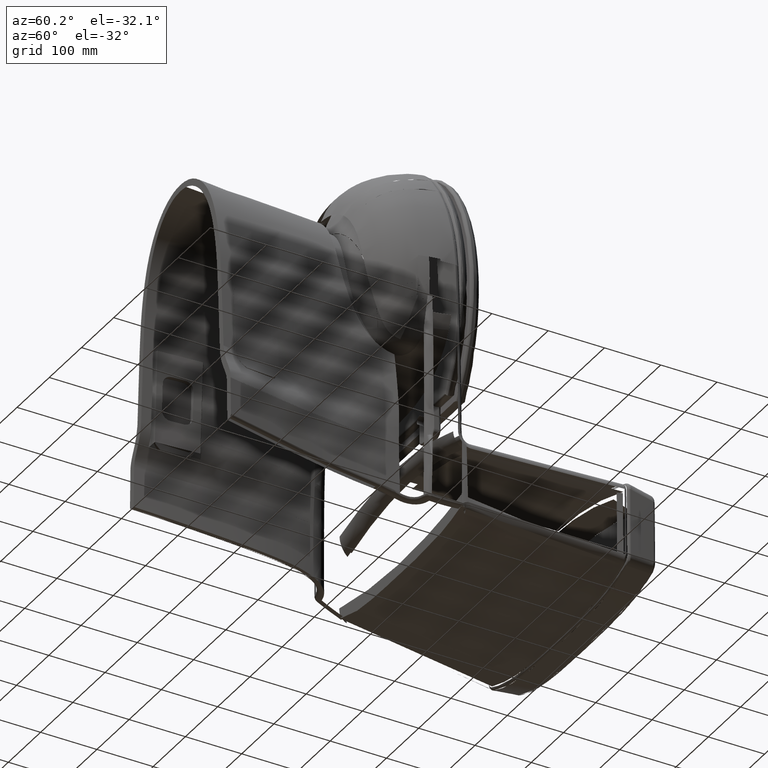
[diagram: clean part render]
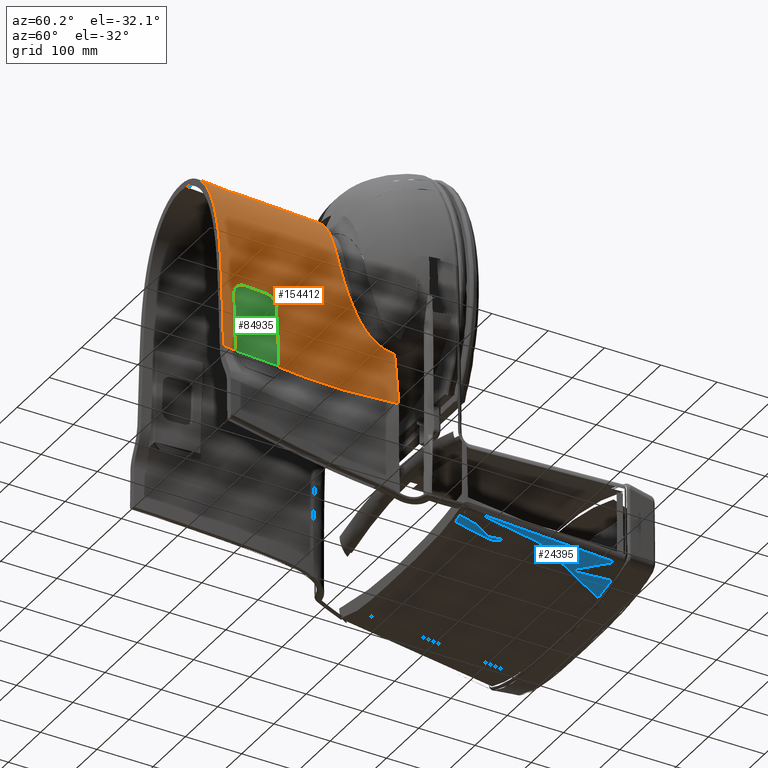
[diagram: same view with three faces highlighted in distinct colors, each labeled with its STEP entity id]
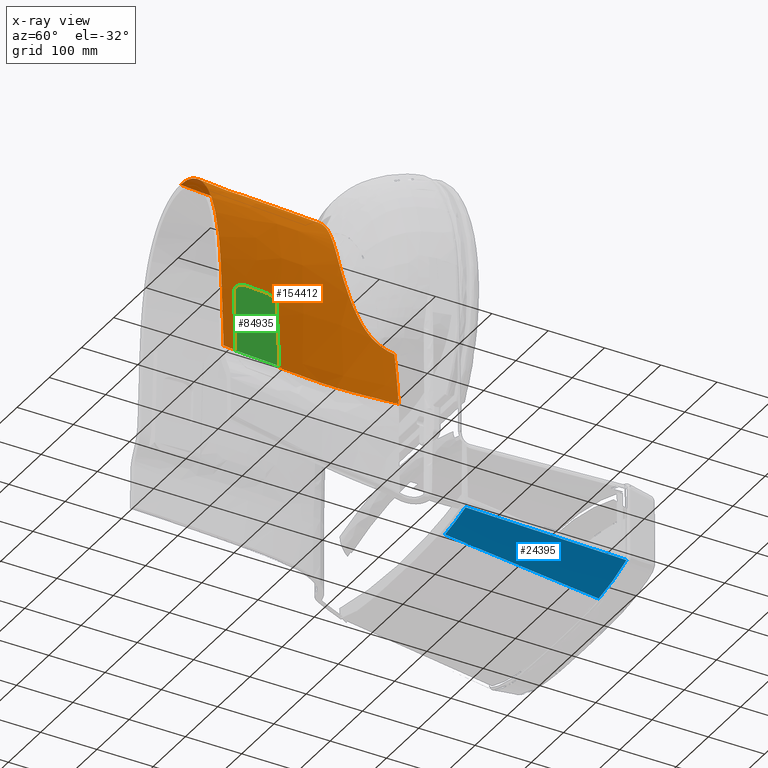
[diagram: x-ray of the same camera — body ghosted, the three highlighted faces saturated]
A machine part, auxiliary view with three faces highlighted in distinct colors.
The next image is the same camera in x-ray (body ghosted, the three faces saturated) — at least one of them is partly hidden behind the body in this view.
Their STEP definitions:

[orange] entity #154412 — the highlighted face is a freeform B-spline surface patch.
#262 = CARTESIAN_POINT ( 'NONE',  ( 0.3971775490000000200, -12.91725209400000200, -4.297533889000000300 ) ) ;
#350 = CARTESIAN_POINT ( 'NONE',  ( 4.925237425930934200, -2.888011665792543400, -4.368778237102388200 ) ) ;
#584 = CARTESIAN_POINT ( 'NONE',  ( 5.023875692999999900, -3.836045110000000100, -15.55118110199999900 ) ) ;
#883 = CARTESIAN_POINT ( 'NONE',  ( 4.820560341000000200, -3.745814711000000400, -4.546098313000000800 ) ) ;
#1116 = VERTEX_POINT ( 'NONE', #9355 ) ;
#1891 = CARTESIAN_POINT ( 'NONE',  ( 3.452978635673702900, -10.50361124630333100, -6.910037022137784000 ) ) ;
#2041 = EDGE_CURVE ( 'NONE', #91005, #133568, #130901, .T. ) ;
#2719 = CARTESIAN_POINT ( 'NONE',  ( 4.851476470085575700, 0.9648095363895623500, -8.805451048320581000 ) ) ;
#2799 = CARTESIAN_POINT ( 'NONE',  ( 1.478486169857680100, -12.80901656676868100, -7.068555511409968500 ) ) ;
#2884 = ORIENTED_EDGE ( 'NONE', *, *, #44850, .T. ) ;
#3138 = CARTESIAN_POINT ( 'NONE',  ( 4.802689858191817200, -2.879307276201579700, -11.56153050229133500 ) ) ;
#3364 = CARTESIAN_POINT ( 'NONE',  ( 3.536725991000000400, -10.29476645300000100, -3.423797559999999700 ) ) ;
#3493 = CARTESIAN_POINT ( 'NONE',  ( 4.936666735223594700, -0.1078098609387385800, -11.56111969740551800 ) ) ;
#3740 = ORIENTED_EDGE ( 'NONE', *, *, #15878, .T. ) ;
#3758 = CARTESIAN_POINT ( 'NONE',  ( 4.792607803997095000, -3.064162885146674200, -11.56152461535174900 ) ) ;
#3774 = B_SPLINE_CURVE_WITH_KNOTS ( 'NONE', 3,
 ( #71441, #129344, #172452, #86238 ),
 .UNSPECIFIED., .F., .F.,
 ( 4, 4 ),
 ( 0.0000000000000000000, 1.000000000000000000 ),
 .UNSPECIFIED. ) ;
#3777 = EDGE_CURVE ( 'NONE', #87414, #10290, #186207, .T. ) ;
#4020 = CARTESIAN_POINT ( 'NONE',  ( 3.198075341161282100, -11.04688534828197700, -6.928340242591054300 ) ) ;
#4033 = EDGE_CURVE ( 'NONE', #96943, #109854, #63632, .T. ) ;
#4390 = CARTESIAN_POINT ( 'NONE',  ( 4.888798693595512100, -4.272665839027574500, -14.02063648814565700 ) ) ;
#4405 = CARTESIAN_POINT ( 'NONE',  ( 5.023651534109576200, -2.699186880720172900, -14.69725479720465200 ) ) ;
#4598 = CARTESIAN_POINT ( 'NONE',  ( 4.862815934905369500, 0.9450112189933851400, -9.326638618514705200 ) ) ;
#5000 = CARTESIAN_POINT ( 'NONE',  ( 4.925237425930934200, -2.888011665792543400, -4.368778237102388200 ) ) ;
#5099 = CARTESIAN_POINT ( 'NONE',  ( 5.191734823048494500, 0.5860305449441486300, -14.69563967190118200 ) ) ;
#5734 = EDGE_CURVE ( 'NONE', #19961, #142176, #69698, .T. ) ;
#5883 = CARTESIAN_POINT ( 'NONE',  ( 4.767201821123505200, -3.497202055954741000, -11.56145561938581400 ) ) ;
#6039 = CARTESIAN_POINT ( 'NONE',  ( 4.946741159113551100, -3.921314761441349300, -14.54387793951967500 ) ) ;
#6104 = VERTEX_POINT ( 'NONE', #138772 ) ;
#6789 = VERTEX_POINT ( 'NONE', #142563 ) ;
#6886 = EDGE_CURVE ( 'NONE', #174215, #142991, #21829, .T. ) ;
#6930 = EDGE_CURVE ( 'NONE', #95241, #7517, #44201, .T. ) ;
#7026 = CARTESIAN_POINT ( 'NONE',  ( 4.877506719198180500, 1.015902351557630000, -7.460680815598435000 ) ) ;
#7302 = CARTESIAN_POINT ( 'NONE',  ( 4.941845414057456600, -3.967863529844057900, -14.51238281752202800 ) ) ;
#7517 = VERTEX_POINT ( 'NONE', #42331 ) ;
#7662 = CARTESIAN_POINT ( 'NONE',  ( 4.902500064741113700, -4.225915334342530200, -14.17327872497243000 ) ) ;
#7663 = CARTESIAN_POINT ( 'NONE',  ( 3.262409209866474800, -10.92063003557534100, -6.924473437055080900 ) ) ;
#8054 = EDGE_CURVE ( 'NONE', #13258, #27386, #110063, .T. ) ;
#9164 = EDGE_CURVE ( 'NONE', #10290, #140002, #73479, .T. ) ;
#9206 = CARTESIAN_POINT ( 'NONE',  ( 1.556748617909345500, -12.77170149215036900, -7.060880384700740600 ) ) ;
#9355 = CARTESIAN_POINT ( 'NONE',  ( 2.674674317198467900, -11.85505531120107600, -6.958659499409430200 ) ) ;
#9684 = EDGE_CURVE ( 'NONE', #6789, #127799, #122907, .T. ) ;
#9781 = CARTESIAN_POINT ( 'NONE',  ( 2.396438057553238500, -12.16616050414726900, -6.979582501208554400 ) ) ;
#9826 = CARTESIAN_POINT ( 'NONE',  ( 4.961427584859881900, 1.054791997484486600, -6.436292333661423700 ) ) ;
#9841 = CARTESIAN_POINT ( 'NONE',  ( 5.122174573227035000, -0.7827854561862136500, -14.69654562374017100 ) ) ;
#9893 = CARTESIAN_POINT ( 'NONE',  ( 3.627729084000000300, -10.34338198400000100, -10.15218582900000000 ) ) ;
#10155 = CARTESIAN_POINT ( 'NONE',  ( 4.523025260315829900, -5.387007157036569200, -6.048836957015831600 ) ) ;
#10290 = VERTEX_POINT ( 'NONE', #10362 ) ;
#10362 = CARTESIAN_POINT ( 'NONE',  ( 4.802689858191817200, -2.879307276201579700, -11.56153050229133500 ) ) ;
#10537 = CARTESIAN_POINT ( 'NONE',  ( 3.327158335000000000, -11.27056773900000100, -12.62110677000000100 ) ) ;
#10580 = CARTESIAN_POINT ( 'NONE',  ( 4.888325107219185600, -1.154910096296451800, -11.56131339824804300 ) ) ;
#10660 = CARTESIAN_POINT ( 'NONE',  ( 4.413191040101009000, -6.192385017036511600, -6.302995947181126500 ) ) ;
#11142 = CARTESIAN_POINT ( 'NONE',  ( 2.047689978999999800, -12.71811571900000000, -10.37903897400000000 ) ) ;
#11521 = VERTEX_POINT ( 'NONE', #146756 ) ;
#11529 = CARTESIAN_POINT ( 'NONE',  ( 4.880648605297528400, 0.9268423154135644300, -9.805063326652252400 ) ) ;
#11643 = CARTESIAN_POINT ( 'NONE',  ( 4.959336086402793800, 0.8731036453142777500, -11.22310733074946200 ) ) ;
#11773 = CARTESIAN_POINT ( 'NONE',  ( 3.740990982000000000, -10.36053907900000000, -12.54402917300000200 ) ) ;
#12410 = CARTESIAN_POINT ( 'NONE',  ( 1.129640950000000000, -12.89894718300000100, -5.610186599000000400 ) ) ;
#12918 = CARTESIAN_POINT ( 'NONE',  ( 5.174027809599089700, 0.2324608662303401200, -14.69585990437793800 ) ) ;
#13046 = CARTESIAN_POINT ( 'NONE',  ( 5.096179667833834700, -1.285721320580708100, -14.69686143758661800 ) ) ;
#13051 = CARTESIAN_POINT ( 'NONE',  ( 3.944056577999999600, -9.113255282000000800, -4.442795621000000100 ) ) ;
#13053 = EDGE_CURVE ( 'NONE', #140002, #44712, #104993, .T. ) ;
#13059 = EDGE_CURVE ( 'NONE', #13615, #63525, #82628, .T. ) ;
#13258 = VERTEX_POINT ( 'NONE', #135668 ) ;
#13615 = VERTEX_POINT ( 'NONE', #104345 ) ;
#13667 = ORIENTED_EDGE ( 'NONE', *, *, #166860, .T. ) ;
#13694 = CARTESIAN_POINT ( 'NONE',  ( 0.4178889400000001000, -13.08915260000000000, -6.897101258999999400 ) ) ;
#14088 = CARTESIAN_POINT ( 'NONE',  ( 3.864832685526375500, -9.260558894934028700, -6.837257143022493500 ) ) ;
#14322 = CARTESIAN_POINT ( 'NONE',  ( 4.463034412765035900, -5.834194404161969800, -6.199515520465937800 ) ) ;
#14326 = CARTESIAN_POINT ( 'NONE',  ( 2.622297072999999900, -11.88474329600000000, -5.672516346000000100 ) ) ;
#14502 = CARTESIAN_POINT ( 'NONE',  ( 4.982401045696697400, -3.476169542815662300, -14.69698374599869900 ) ) ;
#14592 = ORIENTED_EDGE ( 'NONE', *, *, #46199, .T. ) ;
#14789 = ORIENTED_EDGE ( 'NONE', *, *, #99972, .T. ) ;
#14944 = CARTESIAN_POINT ( 'NONE',  ( 1.101744076000000100, -12.81862150400000300, -4.312393156000000600 ) ) ;
#15023 = EDGE_CURVE ( 'NONE', #128482, #6104, #3774, .T. ) ;
#15063 = CARTESIAN_POINT ( 'NONE',  ( 4.250601582656159400, -7.287980316407878700, -6.564444113022255500 ) ) ;
#15862 = CARTESIAN_POINT ( 'NONE',  ( 2.053940073556559800, -12.46658138936077400, -7.010134883885148000 ) ) ;
#15878 = EDGE_CURVE ( 'NONE', #47734, #48127, #30698, .T. ) ;
#15912 = CARTESIAN_POINT ( 'NONE',  ( 5.247693653803901600, 0.4723905789121820000, -15.55118110199999900 ) ) ;
#16143 = CARTESIAN_POINT ( 'NONE',  ( 4.912023624136686800, -4.180685676921035200, -14.26872007086321400 ) ) ;
#16571 = ORIENTED_EDGE ( 'NONE', *, *, #75897, .T. ) ;
#17429 = VERTEX_POINT ( 'NONE', #18560 ) ;
#17551 = EDGE_CURVE ( 'NONE', #23168, #40313, #184931, .T. ) ;
#17585 = CARTESIAN_POINT ( 'NONE',  ( 4.675842025719358500, -4.255041452035480500, -5.560755309614208400 ) ) ;
#18195 = ORIENTED_EDGE ( 'NONE', *, *, #25727, .T. ) ;
#18494 = CARTESIAN_POINT ( 'NONE',  ( 4.750447811680548000, -3.849339272109862300, -11.64149444841528900 ) ) ;
#18560 = CARTESIAN_POINT ( 'NONE',  ( 4.981611044896372000, 0.8602029895272781400, -11.56107754185477000 ) ) ;
#18691 = CARTESIAN_POINT ( 'NONE',  ( 4.869475788638769800, 0.9379126149019601000, -9.513630678027553200 ) ) ;
#19022 = CARTESIAN_POINT ( 'NONE',  ( 5.238821570628518400, 1.132189414570399700, -4.398169239807173400 ) ) ;
#19668 = CARTESIAN_POINT ( 'NONE',  ( 5.076810223442108400, -1.660409615340940400, -14.69703586201562100 ) ) ;
#19961 = VERTEX_POINT ( 'NONE', #160058 ) ;
#20364 = CARTESIAN_POINT ( 'NONE',  ( 4.739979853629277400, -3.822004603513832900, -5.300379631334691600 ) ) ;
#20520 = VERTEX_POINT ( 'NONE', #9206 ) ;
#21405 = CARTESIAN_POINT ( 'NONE',  ( 4.936859048765696500, -4.010569914809296100, -14.47693773822873500 ) ) ;
#21689 = CARTESIAN_POINT ( 'NONE',  ( 5.043065261171555000, -2.319233063824405000, -14.69722116507875100 ) ) ;
#21829 = B_SPLINE_CURVE_WITH_KNOTS ( 'NONE', 3,
 ( #158207, #156947, #38772, #69503 ),
 .UNSPECIFIED., .F., .F.,
 ( 4, 4 ),
 ( 0.0000000000000000000, 1.000000000000000000 ),
 .UNSPECIFIED. ) ;
#22133 = CARTESIAN_POINT ( 'NONE',  ( 3.482381173999999900, -11.35383592100000000, -15.55118110199999900 ) ) ;
#23127 = CARTESIAN_POINT ( 'NONE',  ( 3.582143957589879200, -10.17714710839407400, -6.896281354956290200 ) ) ;
#23168 = VERTEX_POINT ( 'NONE', #100270 ) ;
#23638 = CARTESIAN_POINT ( 'NONE',  ( 5.158310831350257300, -1.665379100424435400, -3.458313877539800400 ) ) ;
#23639 = CARTESIAN_POINT ( 'NONE',  ( 4.751596914796524000, -4.204314231070884300, -12.00810652721394900 ) ) ;
#24051 = CARTESIAN_POINT ( 'NONE',  ( 4.631272926000000300, -3.751846477000000400, -9.331307951999999500 ) ) ;
#24374 = CARTESIAN_POINT ( 'NONE',  ( 4.758481056082595200, -3.655439787974800400, -11.57687909825985000 ) ) ;
#24669 = CARTESIAN_POINT ( 'NONE',  ( 4.966881048830330800, 0.5425425758778988900, -11.56108987317719900 ) ) ;
#24678 = CARTESIAN_POINT ( 'NONE',  ( 2.046682077000000300, -12.66643770000000100, -9.309515242999999900 ) ) ;
#25282 = CARTESIAN_POINT ( 'NONE',  ( 3.633596380236003000, -10.02768620220876600, -6.888347042543302700 ) ) ;
#25315 = CARTESIAN_POINT ( 'NONE',  ( 4.300179451000000000, -7.518942489000000500, -10.18928230100000200 ) ) ;
#25491 = CARTESIAN_POINT ( 'NONE',  ( 5.124560326038907700, 1.103344922915737900, -5.157218478868443900 ) ) ;
#25713 = CARTESIAN_POINT ( 'NONE',  ( 4.896694670003999100, 0.9138757767599424700, -10.14673715374266100 ) ) ;
#25727 = EDGE_CURVE ( 'NONE', #47024, #84862, #45663, .T. ) ;
#25930 = CARTESIAN_POINT ( 'NONE',  ( 1.173059950999999900, -13.13307876500000000, -9.377095404000000300 ) ) ;
#25989 = VERTEX_POINT ( 'NONE', #92576 ) ;
#26244 = CARTESIAN_POINT ( 'NONE',  ( 4.767201821123505200, -3.497202055954741000, -11.56145561938581400 ) ) ;
#26303 = CARTESIAN_POINT ( 'NONE',  ( 5.042702939570310700, -2.556181913980074300, -3.659387543526372100 ) ) ;
#26533 = B_SPLINE_CURVE_WITH_KNOTS ( 'NONE', 3,
 ( #126285, #37022, #111508, #173171 ),
 .UNSPECIFIED., .F., .F.,
 ( 4, 4 ),
 ( 0.0000000000000000000, 1.000000000000000000 ),
 .UNSPECIFIED. ) ;
#26557 = CARTESIAN_POINT ( 'NONE',  ( 3.599937053000000100, -10.33990804100000300, -9.208857889000000800 ) ) ;
#26811 = CARTESIAN_POINT ( 'NONE',  ( 4.135696286090068300, -7.978491917078590000, -6.684663851227727900 ) ) ;
#27022 = CARTESIAN_POINT ( 'NONE',  ( 5.244281968552106000, -0.7718307270110350600, -3.430891782256710400 ) ) ;
#27043 = CARTESIAN_POINT ( 'NONE',  ( 5.158114710907096200, -0.08238703692950336000, -14.69606696896512300 ) ) ;
#27175 = CARTESIAN_POINT ( 'NONE',  ( 5.197215962000000500, 0.8429443140000000300, -4.554331176999999900 ) ) ;
#27386 = VERTEX_POINT ( 'NONE', #134028 ) ;
#27387 = B_SPLINE_CURVE_WITH_KNOTS ( 'NONE', 3,
 ( #169225, #167926, #143461, #128073 ),
 .UNSPECIFIED., .F., .F.,
 ( 4, 4 ),
 ( 0.0000000000000000000, 1.000000000000000000 ),
 .UNSPECIFIED. ) ;
#27460 = EDGE_LOOP ( 'NONE', ( #173558, #18195, #142891, #80533, #80571, #113927, #59355, #173541, #37214, #156880, #120554, #46254, #48923, #175604, #72002, #89294, #157002, #45678, #154061, #147361, #77491, #147335, #160202, #172849, #159508, #157954, #99337, #150688, #48401, #53513, #109297, #189617, #50905, #100369, #38191, #14789, #56459, #16571, #51615, #29020, #71394, #3740, #116305, #57742, #106181, #183419, #107447, #32680, #148016, #184485, #100520, #52574, #89980, #66734, #151601, #13667, #111611, #14592, #116593, #35141, #146457, #151320, #37074, #79035, #65036, #53671, #88033, #141396, #2884, #142885, #70213, #91168, #99780, #108784, #49097, #180780, #187773 ) ) ;
#27591 = CARTESIAN_POINT ( 'NONE',  ( 1.897524680393829700, -12.57613512782399400, -7.025918990460558800 ) ) ;
#27816 = CARTESIAN_POINT ( 'NONE',  ( 4.226578621999999900, -7.519960588000000000, -8.156344674000001400 ) ) ;
#28275 = EDGE_CURVE ( 'NONE', #52482, #139806, #175126, .T. ) ;
#28431 = CARTESIAN_POINT ( 'NONE',  ( 4.523025260315829900, -5.387007157036569200, -6.048836957015831600 ) ) ;
#28437 = CARTESIAN_POINT ( 'NONE',  ( 3.516288559000000400, -10.30303109500000100, -4.410226340000000400 ) ) ;
#29020 = ORIENTED_EDGE ( 'NONE', *, *, #173214, .T. ) ;
#29084 = CARTESIAN_POINT ( 'NONE',  ( 5.222080067000001200, 1.265798729000000100, -4.549537466000000300 ) ) ;
#29533 = B_SPLINE_CURVE_WITH_KNOTS ( 'NONE', 3,
 ( #20364, #79297, #63951, #78660 ),
 .UNSPECIFIED., .F., .F.,
 ( 4, 4 ),
 ( 0.0000000000000000000, 1.000000000000000000 ),
 .UNSPECIFIED. ) ;
#29731 = CARTESIAN_POINT ( 'NONE',  ( 3.522171632999999700, -10.31471969100000100, -5.717983711999999700 ) ) ;
#29778 = CARTESIAN_POINT ( 'NONE',  ( 4.429945490615137900, -6.072382976950674300, -6.268710129985762200 ) ) ;
#29793 = DIRECTION ( 'NONE',  ( -0.0000000000000000000, -0.06598247776163608500, -0.9978207818182758300 ) ) ;
#30188 = VERTEX_POINT ( 'NONE', #154328 ) ;
#30223 = EDGE_CURVE ( 'NONE', #129041, #39365, #183192, .T. ) ;
#30406 = CARTESIAN_POINT ( 'NONE',  ( 0.0000000000000000000, -13.24612601327688900, -9.270933501231962000 ) ) ;
#30698 = B_SPLINE_CURVE_WITH_KNOTS ( 'NONE', 3,
 ( #97382, #184220, #168747, #23638 ),
 .UNSPECIFIED., .F., .F.,
 ( 4, 4 ),
 ( 0.0000000000000000000, 1.000000000000000000 ),
 .UNSPECIFIED. ) ;
#30769 = B_SPLINE_CURVE_WITH_KNOTS ( 'NONE', 3,
 ( #152761, #93615, #122585, #7663 ),
 .UNSPECIFIED., .F., .F.,
 ( 4, 4 ),
 ( 0.0000000000000000000, 1.000000000000000000 ),
 .UNSPECIFIED. ) ;
#30961 = CARTESIAN_POINT ( 'NONE',  ( 1.078200265000000000, -12.74050674700000100, -3.046901159000000400 ) ) ;
#31872 = B_SPLINE_CURVE_WITH_KNOTS ( 'NONE', 3,
 ( #90416, #5099, #32675, #34574 ),
 .UNSPECIFIED., .F., .F.,
 ( 4, 4 ),
 ( 5.662199700187942700E-010, 1.000000000000000000 ),
 .UNSPECIFIED. ) ;
#32017 = CARTESIAN_POINT ( 'NONE',  ( 0.6540278118125286700, -13.05444745910857800, -7.124302309401427300 ) ) ;
#32030 = B_SPLINE_CURVE_WITH_KNOTS ( 'NONE', 3,
 ( #96493, #157550, #126099, #81088 ),
 .UNSPECIFIED., .F., .F.,
 ( 4, 4 ),
 ( 0.0000000000000000000, 1.000000000000000000 ),
 .UNSPECIFIED. ) ;
#32208 = CARTESIAN_POINT ( 'NONE',  ( 1.083502109000000100, -12.75904879300000000, -3.347467248000000500 ) ) ;
#32253 = CARTESIAN_POINT ( 'NONE',  ( 1.438297805014257200, -12.82660058900916400, -7.072388363224324500 ) ) ;
#32661 = EDGE_CURVE ( 'NONE', #81850, #111566, #180784, .T. ) ;
#32675 = CARTESIAN_POINT ( 'NONE',  ( 5.183290165420617200, 0.4164120789130871800, -14.69574166440800100 ) ) ;
#32680 = ORIENTED_EDGE ( 'NONE', *, *, #28275, .T. ) ;
#32987 = EDGE_CURVE ( 'NONE', #71506, #83586, #113516, .T. ) ;
#33119 = CARTESIAN_POINT ( 'NONE',  ( 5.343321337921374900, 1.157645094938829300, -3.728571370843275700 ) ) ;
#33419 = CARTESIAN_POINT ( 'NONE',  ( 5.102962688059043300, -2.201978337068165400, -3.475588733729036800 ) ) ;
#33693 = CARTESIAN_POINT ( 'NONE',  ( 5.219293241026714500, 0.7305137391952233300, -14.97571175012404700 ) ) ;
#34140 = CARTESIAN_POINT ( 'NONE',  ( 4.976686813570288400, 1.060240019905029000, -6.292710199892528800 ) ) ;
#34337 = CARTESIAN_POINT ( 'NONE',  ( 5.324999586428854000, 0.1727388594029437000, -3.404841323102772300 ) ) ;
#34574 = CARTESIAN_POINT ( 'NONE',  ( 5.174027809599089700, 0.2324608662303401200, -14.69585990437793800 ) ) ;
#35141 = ORIENTED_EDGE ( 'NONE', *, *, #117966, .T. ) ;
#35286 = EDGE_CURVE ( 'NONE', #142176, #81850, #26533, .T. ) ;
#35430 = CARTESIAN_POINT ( 'NONE',  ( 4.961427584859881900, 1.054791997484486600, -6.436292333661423700 ) ) ;
#35662 = VERTEX_POINT ( 'NONE', #63113 ) ;
#35932 = CARTESIAN_POINT ( 'NONE',  ( 3.633596380236003000, -10.02768620220876600, -6.888347042543302700 ) ) ;
#35945 = VERTEX_POINT ( 'NONE', #9826 ) ;
#36268 = CARTESIAN_POINT ( 'NONE',  ( 5.324999586428854000, 0.1727388594029437000, -3.404841323102772300 ) ) ;
#36696 = CARTESIAN_POINT ( 'NONE',  ( 2.218566185371984500, -12.33504697985429400, -6.994818054794314400 ) ) ;
#36856 = CARTESIAN_POINT ( 'NONE',  ( 2.112555084000000200, -12.97642839500000100, -15.55118110199999900 ) ) ;
#37022 = CARTESIAN_POINT ( 'NONE',  ( 3.754887715234057000, -9.654336156992789200, -6.866633007449961700 ) ) ;
#37074 = ORIENTED_EDGE ( 'NONE', *, *, #32661, .T. ) ;
#37214 = ORIENTED_EDGE ( 'NONE', *, *, #96556, .T. ) ;
#37496 = CARTESIAN_POINT ( 'NONE',  ( 2.843523749000000000, -12.17738031900000100, -14.47156964900000300 ) ) ;
#37733 = CARTESIAN_POINT ( 'NONE',  ( 4.947501383750594800, -2.806629999343364500, -4.242825470161805300 ) ) ;
#38152 = CARTESIAN_POINT ( 'NONE',  ( 5.166528868999999500, -0.2113895590000000300, -14.89339351900000400 ) ) ;
#38191 = ORIENTED_EDGE ( 'NONE', *, *, #81865, .T. ) ;
#38772 = CARTESIAN_POINT ( 'NONE',  ( 4.921863198382618900, -4.121562046607881900, -14.35750091068201000 ) ) ;
#38786 = CARTESIAN_POINT ( 'NONE',  ( 2.779143468000000400, -12.11225664200000000, -12.75961858500000200 ) ) ;
#38846 = B_SPLINE_CURVE_WITH_KNOTS ( 'NONE', 3,
 ( #3493, #60600, #24669, #170467 ),
 .UNSPECIFIED., .F., .F.,
 ( 4, 4 ),
 ( 0.0000000000000000000, 0.9999999881311486500 ),
 .UNSPECIFIED. ) ;
#39037 = CARTESIAN_POINT ( 'NONE',  ( 4.603796642708313200, -4.780710178779616900, -5.812806176318949800 ) ) ;
#39258 = CARTESIAN_POINT ( 'NONE',  ( 5.036580887474647400, 1.079056354847935100, -5.796886777265903000 ) ) ;
#39365 = VERTEX_POINT ( 'NONE', #149982 ) ;
#39421 = CARTESIAN_POINT ( 'NONE',  ( 2.048155614000000100, -12.77064258200000100, -11.45780631300000100 ) ) ;
#40001 = CARTESIAN_POINT ( 'NONE',  ( 4.773511120152511100, -4.289958845010523300, -12.40753062198928800 ) ) ;
#40058 = CARTESIAN_POINT ( 'NONE',  ( 4.011384845000000300, -9.104513197000001100, -10.14006979099999800 ) ) ;
#40234 = CARTESIAN_POINT ( 'NONE',  ( 5.174411637824635900, 1.116187927041947700, -4.819174374696138400 ) ) ;
#40313 = VERTEX_POINT ( 'NONE', #107798 ) ;
#40674 = CARTESIAN_POINT ( 'NONE',  ( 0.4237613700000000300, -13.25700709500000200, -9.435482791000001900 ) ) ;
#41169 = CARTESIAN_POINT ( 'NONE',  ( 5.166730345615397900, 0.08753256325801393700, -14.69595307345338000 ) ) ;
#41299 = CARTESIAN_POINT ( 'NONE',  ( 4.706491201999999600, -5.654674228999999400, -12.80643723000000200 ) ) ;
#41560 = CARTESIAN_POINT ( 'NONE',  ( 4.166455711250423900, -7.800725577293906800, -6.656477961230799600 ) ) ;
#41718 = CARTESIAN_POINT ( 'NONE',  ( 2.120063632126540000, -12.41374940882118600, -7.003982713263631000 ) ) ;
#41916 = CARTESIAN_POINT ( 'NONE',  ( 3.574937605999999800, -10.33439576900000000, -8.163503352000001100 ) ) ;
#42035 = EDGE_CURVE ( 'NONE', #27386, #183405, #134416, .T. ) ;
#42278 = EDGE_CURVE ( 'NONE', #67159, #129041, #108556, .T. ) ;
#42331 = CARTESIAN_POINT ( 'NONE',  ( 4.753779558791187300, -4.225134021236210700, -12.06042900341733500 ) ) ;
#42539 = CARTESIAN_POINT ( 'NONE',  ( 0.4086990449999999800, -13.00237720000000200, -5.584839272000000900 ) ) ;
#42815 = CARTESIAN_POINT ( 'NONE',  ( 4.195335709551002000, -7.627034850232383300, -6.626236303669299100 ) ) ;
#42920 = B_SPLINE_CURVE_WITH_KNOTS ( 'NONE', 3,
 ( #56804, #15063, #117791, #146691 ),
 .UNSPECIFIED., .F., .F.,
 ( 4, 4 ),
 ( 0.0000000000000000000, 1.000000000000000000 ),
 .UNSPECIFIED. ) ;
#43193 = CARTESIAN_POINT ( 'NONE',  ( 2.589430807999999900, -11.84338304100000300, -4.360454525000000600 ) ) ;
#43276 = CARTESIAN_POINT ( 'NONE',  ( 3.132578718717242200, -11.16765412432857500, -6.932028566735178600 ) ) ;
#43514 = CARTESIAN_POINT ( 'NONE',  ( 2.889128665000000300, -12.21990901500000100, -15.55118110199999900 ) ) ;
#43839 = CARTESIAN_POINT ( 'NONE',  ( 1.971345802000000100, -12.48972318400000200, -5.643565814999999700 ) ) ;
#44201 = B_SPLINE_CURVE_WITH_KNOTS ( 'NONE', 3,
 ( #131146, #167321, #102179, #89890 ),
 .UNSPECIFIED., .F., .F.,
 ( 4, 4 ),
 ( 0.0000000000000000000, 1.000000000000000000 ),
 .UNSPECIFIED. ) ;
#44467 = CARTESIAN_POINT ( 'NONE',  ( 0.4239919600000000600, -13.17392933500000000, -8.179138415000000600 ) ) ;
#44712 = VERTEX_POINT ( 'NONE', #117297 ) ;
#44850 = EDGE_CURVE ( 'NONE', #1116, #190097, #27387, .T. ) ;
#45100 = CARTESIAN_POINT ( 'NONE',  ( 0.2356238244840366300, -13.10492191657416200, -7.135572931956776400 ) ) ;
#45145 = CARTESIAN_POINT ( 'NONE',  ( 3.230730239247303600, -10.98409533329054500, -6.926420676499621900 ) ) ;
#45663 = B_SPLINE_CURVE_WITH_KNOTS ( 'NONE', 3,
 ( #162318, #116080, #177788, #58275, #43514, #146270, #101916, #118008, #145648, #88375, #584, #175235, #161079, #15912, #87741 ),
 .UNSPECIFIED., .F., .F.,
 ( 4, 1, 1, 1, 1, 1, 1, 1, 1, 1, 1, 1, 4 ),
 ( 0.2479974947220000000, 0.2926628343469999700, 0.3373281739720000400, 0.3819935135970000100, 0.4266588532219999800, 0.4713241928459999700, 0.5159895324709999900, 0.6053202117209999200, 0.6896758605469999200, 0.7740315093720000500, 0.8583871581980000400, 0.9427428070240000400, 0.9731248784223822700 ),
 .UNSPECIFIED. ) ;
#45678 = ORIENTED_EDGE ( 'NONE', *, *, #161070, .T. ) ;
#45724 = CARTESIAN_POINT ( 'NONE',  ( 5.388980657000000300, 0.8463990569999999500, -3.309686128000000100 ) ) ;
#45764 = CARTESIAN_POINT ( 'NONE',  ( 1.517962806492670000, -12.79070766264580300, -7.064719668062330100 ) ) ;
#46199 = EDGE_CURVE ( 'NONE', #151648, #128482, #104324, .T. ) ;
#46254 = ORIENTED_EDGE ( 'NONE', *, *, #123026, .T. ) ;
#46256 = EDGE_CURVE ( 'NONE', #83586, #106319, #83989, .T. ) ;
#46340 = CARTESIAN_POINT ( 'NONE',  ( 4.905063625078559800, -0.7963025220742414600, -11.56123413257346900 ) ) ;
#46964 = CARTESIAN_POINT ( 'NONE',  ( 0.3889097979999999700, -12.85397990900000100, -3.340699540000000100 ) ) ;
#47020 = VERTEX_POINT ( 'NONE', #170545 ) ;
#47024 = VERTEX_POINT ( 'NONE', #115842 ) ;
#47085 = EDGE_CURVE ( 'NONE', #135508, #52482, #86335, .T. ) ;
#47701 = B_SPLINE_CURVE_WITH_KNOTS ( 'NONE', 3,
 ( #34337, #63836, #90814, #181505 ),
 .UNSPECIFIED., .F., .F.,
 ( 4, 4 ),
 ( 0.0000000000000000000, 1.000000000000000000 ),
 .UNSPECIFIED. ) ;
#47734 = VERTEX_POINT ( 'NONE', #27022 ) ;
#47912 = CARTESIAN_POINT ( 'NONE',  ( 4.961222065252569800, -3.768632741334657900, -14.62628064858660400 ) ) ;
#48127 = VERTEX_POINT ( 'NONE', #150467 ) ;
#48207 = CARTESIAN_POINT ( 'NONE',  ( 4.888325107219185600, -1.154910096296451800, -11.56131339824804300 ) ) ;
#48401 = ORIENTED_EDGE ( 'NONE', *, *, #13053, .T. ) ;
#48484 = CARTESIAN_POINT ( 'NONE',  ( 5.199370434380562700, 0.7411522227212670200, -14.69555471755370100 ) ) ;
#48520 = CARTESIAN_POINT ( 'NONE',  ( 1.897524680393829700, -12.57613512782399400, -7.025918990460558800 ) ) ;
#48923 = ORIENTED_EDGE ( 'NONE', *, *, #187284, .T. ) ;
#49072 = B_SPLINE_CURVE_WITH_KNOTS ( 'NONE', 3,
 ( #156549, #185498, #37733, #83280 ),
 .UNSPECIFIED., .F., .F.,
 ( 4, 4 ),
 ( 0.0000000000000000000, 1.000000000000000000 ),
 .UNSPECIFIED. ) ;
#49097 = ORIENTED_EDGE ( 'NONE', *, *, #32987, .T. ) ;
#49492 = CARTESIAN_POINT ( 'NONE',  ( 4.880092239875672500, -4.289054865433092400, -13.91214032322214500 ) ) ;
#49848 = CARTESIAN_POINT ( 'NONE',  ( 5.088126207431271200, 1.093523957158298000, -5.415907621519708400 ) ) ;
#49927 = CARTESIAN_POINT ( 'NONE',  ( 4.985784354827536000, -3.414133246082282600, -14.69701298113779600 ) ) ;
#50114 = CARTESIAN_POINT ( 'NONE',  ( 4.675842025719358500, -4.255041452035480500, -5.560755309614208400 ) ) ;
#50206 = CARTESIAN_POINT ( 'NONE',  ( 4.776981746092766400, -3.592354407183896600, -5.135935398010792200 ) ) ;
#50702 = CARTESIAN_POINT ( 'NONE',  ( 2.870444874118889300, -11.59133854013398400, -6.946350706913378300 ) ) ;
#50749 = CARTESIAN_POINT ( 'NONE',  ( 4.884306344746506500, -4.283578286613764200, -13.96680054255609300 ) ) ;
#50905 = ORIENTED_EDGE ( 'NONE', *, *, #154832, .T. ) ;
#51346 = CARTESIAN_POINT ( 'NONE',  ( 3.522833210219781900, -10.33642449461739700, -6.903537331040052300 ) ) ;
#51615 = ORIENTED_EDGE ( 'NONE', *, *, #9684, .T. ) ;
#51633 = CARTESIAN_POINT ( 'NONE',  ( 5.066657541999999700, -1.949050447999999900, -14.77172699400000000 ) ) ;
#51648 = B_SPLINE_CURVE_WITH_KNOTS ( 'NONE', 3,
 ( #84475, #171303, #25491, #40234, #184792, #96698 ),
 .UNSPECIFIED., .F., .F.,
 ( 4, 2, 4 ),
 ( 0.0000000000000000000, 0.5000000000000000000, 1.000000000000000000 ),
 .UNSPECIFIED. ) ;
#51677 = CARTESIAN_POINT ( 'NONE',  ( 5.103070156594796500, -1.152485732893984600, -14.69678582715602000 ) ) ;
#51805 = EDGE_CURVE ( 'NONE', #122251, #155210, #115529, .T. ) ;
#52096 = CARTESIAN_POINT ( 'NONE',  ( 2.120063632126540000, -12.41374940882118600, -7.003982713263631000 ) ) ;
#52270 = CARTESIAN_POINT ( 'NONE',  ( 1.149265288000000100, -13.46719486399999800, -14.71978770600000000 ) ) ;
#52482 = VERTEX_POINT ( 'NONE', #83734 ) ;
#52574 = ORIENTED_EDGE ( 'NONE', *, *, #157967, .T. ) ;
#52846 = CARTESIAN_POINT ( 'NONE',  ( 2.870444874118889300, -11.59133854013398400, -6.946350706913378300 ) ) ;
#53513 = ORIENTED_EDGE ( 'NONE', *, *, #119900, .T. ) ;
#53551 = CARTESIAN_POINT ( 'NONE',  ( 4.804652764000000100, -0.2010737340000000000, -9.444175742000000500 ) ) ;
#53630 = CARTESIAN_POINT ( 'NONE',  ( 1.438297805014257200, -12.82660058900916400, -7.072388363224324500 ) ) ;
#53635 = CARTESIAN_POINT ( 'NONE',  ( 5.059111818568331900, -2.004838769847166800, -14.69715547509647100 ) ) ;
#53671 = ORIENTED_EDGE ( 'NONE', *, *, #42278, .T. ) ;
#53934 = CARTESIAN_POINT ( 'NONE',  ( 4.747155904494162500, -4.052254138614177500, -11.79182857507873900 ) ) ;
#54135 = CARTESIAN_POINT ( 'NONE',  ( 5.148164793186810000, -0.2770030776195370700, -14.69620008141730900 ) ) ;
#54188 = CARTESIAN_POINT ( 'NONE',  ( 4.963774731000000000, -0.2052108920000000100, -12.04795545600000200 ) ) ;
#54822 = CARTESIAN_POINT ( 'NONE',  ( 4.877607788000000600, -0.2029743670000000200, -10.75258059600000100 ) ) ;
#55135 = CARTESIAN_POINT ( 'NONE',  ( 4.761009637393850200, -3.604073904671655400, -11.56658888784927400 ) ) ;
#55294 = CARTESIAN_POINT ( 'NONE',  ( 4.961222065252569800, -3.768632741334657900, -14.62628064858660400 ) ) ;
#55451 = CARTESIAN_POINT ( 'NONE',  ( 4.930422522000000600, 0.8560970810000000400, -10.80389061100000000 ) ) ;
#55692 = CARTESIAN_POINT ( 'NONE',  ( 1.556748617909345500, -12.77170149215036900, -7.060880384700740600 ) ) ;
#55887 = B_SPLINE_CURVE_WITH_KNOTS ( 'NONE', 3,
 ( #123973, #50749, #49492, #152258 ),
 .UNSPECIFIED., .F., .F.,
 ( 4, 4 ),
 ( 0.0000000000000000000, 1.000000000000000000 ),
 .UNSPECIFIED. ) ;
#56078 = CARTESIAN_POINT ( 'NONE',  ( 5.074842765000000500, -0.2084881400000000400, -13.61878346800000200 ) ) ;
#56162 = CARTESIAN_POINT ( 'NONE',  ( 4.881352729005568500, -3.059192668636174300, -4.612387113585225700 ) ) ;
#56259 = B_SPLINE_CURVE_WITH_KNOTS ( 'NONE', 3,
 ( #6039, #7302, #21405, #138238 ),
 .UNSPECIFIED., .F., .F.,
 ( 4, 4 ),
 ( 0.0000000000000000000, 1.000000000000000000 ),
 .UNSPECIFIED. ) ;
#56459 = ORIENTED_EDGE ( 'NONE', *, *, #169390, .T. ) ;
#56705 = CARTESIAN_POINT ( 'NONE',  ( 4.598794157000000400, -5.618401040000000200, -4.518240004000000800 ) ) ;
#56804 = CARTESIAN_POINT ( 'NONE',  ( 4.275695890192298300, -7.126344733787484600, -6.530773760362214000 ) ) ;
#57077 = CARTESIAN_POINT ( 'NONE',  ( 4.918050135521729900, 0.8990310965208240200, -10.53809970538582900 ) ) ;
#57321 = CARTESIAN_POINT ( 'NONE',  ( 3.161302263000000100, -11.16556642000000100, -6.976545229000000100 ) ) ;
#57360 = CARTESIAN_POINT ( 'NONE',  ( 4.418815271187154000, -6.152308493643742400, -6.291736367541925100 ) ) ;
#57742 = ORIENTED_EDGE ( 'NONE', *, *, #8054, .T. ) ;
#57940 = CARTESIAN_POINT ( 'NONE',  ( 4.918183380000000300, 1.264737478000000000, -6.936183427999999700 ) ) ;
#58275 = CARTESIAN_POINT ( 'NONE',  ( 2.112555084000000200, -12.97642839500000100, -15.55118110199999900 ) ) ;
#58587 = CARTESIAN_POINT ( 'NONE',  ( 3.950139698000000100, -9.115021223999999500, -8.159977564000000100 ) ) ;
#59233 = CARTESIAN_POINT ( 'NONE',  ( 5.124996084000000200, -1.870890285000000200, -3.608005619000000100 ) ) ;
#59256 = B_SPLINE_CURVE_WITH_KNOTS ( 'NONE', 3,
 ( #98389, #186472, #83619, #187106 ),
 .UNSPECIFIED., .F., .F.,
 ( 4, 4 ),
 ( 0.0000000000000000000, 1.000000000000000000 ),
 .UNSPECIFIED. ) ;
#59355 = ORIENTED_EDGE ( 'NONE', *, *, #13059, .T. ) ;
#59838 = CARTESIAN_POINT ( 'NONE',  ( 5.132436244263685100, -1.921119678678737000, -3.466444361128942800 ) ) ;
#60600 = CARTESIAN_POINT ( 'NONE',  ( 4.951782715810753500, 0.2198191479735899000, -11.56108530678385000 ) ) ;
#61480 = CARTESIAN_POINT ( 'NONE',  ( 5.043065261171555000, -2.319233063824405000, -14.69722116507875100 ) ) ;
#61498 = CARTESIAN_POINT ( 'NONE',  ( 4.275695890192298300, -7.126344733787484600, -6.530773760362214000 ) ) ;
#61785 = B_SPLINE_CURVE_WITH_KNOTS ( 'NONE', 3,
 ( #187121, #171074, #115100, #127376, #114472, #97758 ),
 .UNSPECIFIED., .F., .F.,
 ( 4, 2, 4 ),
 ( 0.0000000000000000000, 0.5000000000000000000, 1.000000000000000000 ),
 .UNSPECIFIED. ) ;
#62184 = EDGE_CURVE ( 'NONE', #106319, #87729, #117066, .T. ) ;
#62724 = CARTESIAN_POINT ( 'NONE',  ( 4.749158885539610100, -3.893797752448300300, -11.66555593579165200 ) ) ;
#63113 = CARTESIAN_POINT ( 'NONE',  ( 4.747155904494162500, -4.052254138614177500, -11.79182857507873900 ) ) ;
#63525 = VERTEX_POINT ( 'NONE', #13046 ) ;
#63532 = CARTESIAN_POINT ( 'NONE',  ( 1.348424122750884200, -12.86591753998792400, -7.080861272504569600 ) ) ;
#63632 = B_SPLINE_CURVE_WITH_KNOTS ( 'NONE', 3,
 ( #146760, #14502, #130719, #115930 ),
 .UNSPECIFIED., .F., .F.,
 ( 4, 4 ),
 ( 0.0000000000000000000, 1.000000000000000000 ),
 .UNSPECIFIED. ) ;
#63744 = CARTESIAN_POINT ( 'NONE',  ( 4.795191964156464900, -3.490249739781156300, -5.048892353078793200 ) ) ;
#63836 = CARTESIAN_POINT ( 'NONE',  ( 5.300686144375576200, -0.1326134390187738700, -3.412670565547323500 ) ) ;
#63838 = B_SPLINE_CURVE_WITH_KNOTS ( 'NONE', 3,
 ( #35430, #34140, #170957, #39258, #82878, #95712 ),
 .UNSPECIFIED., .F., .F.,
 ( 4, 2, 4 ),
 ( 0.0000000000000000000, 0.5000000000000000000, 1.000000000000000000 ),
 .UNSPECIFIED. ) ;
#63951 = CARTESIAN_POINT ( 'NONE',  ( 4.697887008913182800, -4.099259356400720500, -5.477169503739774300 ) ) ;
#64080 = CARTESIAN_POINT ( 'NONE',  ( 4.761982213350693300, -4.273382256555139600, -12.22649160604329100 ) ) ;
#64724 = VERTEX_POINT ( 'NONE', #4390 ) ;
#64736 = CARTESIAN_POINT ( 'NONE',  ( 5.259858475042048700, 0.7086614279978658000, -15.55118110199999700 ) ) ;
#65036 = ORIENTED_EDGE ( 'NONE', *, *, #68061, .T. ) ;
#65655 = CARTESIAN_POINT ( 'NONE',  ( 4.849697074229443800, -4.289329733108522700, -13.48303196039061000 ) ) ;
#65682 = B_SPLINE_CURVE_WITH_KNOTS ( 'NONE', 3,
 ( #183649, #122595, #152165, #64080 ),
 .UNSPECIFIED., .F., .F.,
 ( 4, 4 ),
 ( 0.0000000000000000000, 1.000000000000000000 ),
 .UNSPECIFIED. ) ;
#66082 = CARTESIAN_POINT ( 'NONE',  ( 4.652965372174761200, -4.416700584603867200, -5.647494489036787100 ) ) ;
#66419 = CARTESIAN_POINT ( 'NONE',  ( 4.752156422122801900, -3.802351738077951500, -11.62182237446850800 ) ) ;
#66734 = ORIENTED_EDGE ( 'NONE', *, *, #177990, .T. ) ;
#66993 = EDGE_CURVE ( 'NONE', #159566, #139567, #31872, .T. ) ;
#67159 = VERTEX_POINT ( 'NONE', #151488 ) ;
#67612 = CARTESIAN_POINT ( 'NONE',  ( 5.023875692999999900, -3.836045110000000100, -15.55118110199999900 ) ) ;
#67908 = VERTEX_POINT ( 'NONE', #160138 ) ;
#68052 = EDGE_CURVE ( 'NONE', #20520, #71506, #96638, .T. ) ;
#68061 = EDGE_CURVE ( 'NONE', #186983, #67159, #68359, .T. ) ;
#68248 = CARTESIAN_POINT ( 'NONE',  ( 4.533473252999999500, -5.631111613000000700, -10.31372441200000100 ) ) ;
#68359 = B_SPLINE_CURVE_WITH_KNOTS ( 'NONE', 3,
 ( #75186, #45145, #4020, #105388 ),
 .UNSPECIFIED., .F., .F.,
 ( 4, 4 ),
 ( 0.0000000000000000000, 1.000000000000000000 ),
 .UNSPECIFIED. ) ;
#68548 = B_SPLINE_CURVE_WITH_KNOTS ( 'NONE', 3,
 ( #18691, #4598, #178681, #2719, #136142, #92440 ),
 .UNSPECIFIED., .F., .F.,
 ( 4, 2, 4 ),
 ( 0.0000000000000000000, 0.5000000000000000000, 1.000000000000000000 ),
 .UNSPECIFIED. ) ;
#68581 = EDGE_CURVE ( 'NONE', #35662, #47020, #97741, .T. ) ;
#68655 = EDGE_CURVE ( 'NONE', #96547, #72902, #29533, .T. ) ;
#68882 = CARTESIAN_POINT ( 'NONE',  ( 0.0000000000000000000, -13.42845974500000000, -12.02827745900000200 ) ) ;
#68973 = CARTESIAN_POINT ( 'NONE',  ( 5.005097586139750200, -2.641466013227793800, -3.896373388104468600 ) ) ;
#69081 = VERTEX_POINT ( 'NONE', #181392 ) ;
#69153 = CARTESIAN_POINT ( 'NONE',  ( 4.961427584859881900, 1.054791997484486600, -6.436292333661423700 ) ) ;
#69503 = CARTESIAN_POINT ( 'NONE',  ( 4.916932635278611100, -4.151188612531511200, -14.31301326132675400 ) ) ;
#69517 = CARTESIAN_POINT ( 'NONE',  ( 4.731578907000000300, -1.876239394000000400, -9.395816126999999800 ) ) ;
#69689 = CARTESIAN_POINT ( 'NONE',  ( 4.985784354827536000, -3.414133246082282600, -14.69701298113779600 ) ) ;
#69698 = B_SPLINE_CURVE_WITH_KNOTS ( 'NONE', 3,
 ( #160529, #175320, #14088, #116793 ),
 .UNSPECIFIED., .F., .F.,
 ( 4, 4 ),
 ( 0.0000000000000000000, 1.000000000000000000 ),
 .UNSPECIFIED. ) ;
#69730 = CARTESIAN_POINT ( 'NONE',  ( 1.672435472462672000, -12.71186252648672600, -7.049149373180942000 ) ) ;
#70110 = CARTESIAN_POINT ( 'NONE',  ( 4.846762802000000600, 1.268059004999999800, -8.152605153999999700 ) ) ;
#70213 = ORIENTED_EDGE ( 'NONE', *, *, #117103, .T. ) ;
#70289 = EDGE_CURVE ( 'NONE', #47020, #122251, #173086, .T. ) ;
#70746 = CARTESIAN_POINT ( 'NONE',  ( 4.706035329999999700, -1.867087348000000100, -8.150543791000000500 ) ) ;
#70889 = CARTESIAN_POINT ( 'NONE',  ( 3.262409209866474800, -10.92063003557534100, -6.924473437055080900 ) ) ;
#71380 = CARTESIAN_POINT ( 'NONE',  ( 0.0000000000000000000, -13.17401595399999800, -8.180448299000000000 ) ) ;
#71394 = ORIENTED_EDGE ( 'NONE', *, *, #146659, .T. ) ;
#71441 = CARTESIAN_POINT ( 'NONE',  ( 4.102124943059651600, -8.159643030826881500, -6.710772237755908700 ) ) ;
#71506 = VERTEX_POINT ( 'NONE', #53630 ) ;
#72002 = ORIENTED_EDGE ( 'NONE', *, *, #109239, .T. ) ;
#72019 = CARTESIAN_POINT ( 'NONE',  ( 5.021581583000000600, 0.8414932490000000000, -5.739968708000001000 ) ) ;
#72116 = CARTESIAN_POINT ( 'NONE',  ( 3.164402531995627900, -11.10897409598516800, -6.930231738051121600 ) ) ;
#72648 = CARTESIAN_POINT ( 'NONE',  ( 4.759619045000000000, -1.862827334000000100, -6.959822283000000300 ) ) ;
#72902 = VERTEX_POINT ( 'NONE', #17585 ) ;
#73068 = B_SPLINE_CURVE_WITH_KNOTS ( 'NONE', 3,
 ( #55294, #115596, #100173, #86642 ),
 .UNSPECIFIED., .F., .F.,
 ( 4, 4 ),
 ( 0.0000000000000000000, 1.000000000000000000 ),
 .UNSPECIFIED. ) ;
#73281 = CARTESIAN_POINT ( 'NONE',  ( 0.0000000000000000000, -13.00148562800000100, -5.571356464000000800 ) ) ;
#73340 = CARTESIAN_POINT ( 'NONE',  ( 5.351956947674582700, 0.5112960911538349000, -3.396160692431127200 ) ) ;
#73479 = B_SPLINE_CURVE_WITH_KNOTS ( 'NONE', 3,
 ( #121810, #74176, #180326, #181611 ),
 .UNSPECIFIED., .F., .F.,
 ( 4, 4 ),
 ( 0.0000000000000000000, 1.000000000000000000 ),
 .UNSPECIFIED. ) ;
#73905 = CARTESIAN_POINT ( 'NONE',  ( 4.687311531999999800, -5.622740546000000200, -3.544215404000000000 ) ) ;
#74176 = CARTESIAN_POINT ( 'NONE',  ( 4.814106740853207000, -2.669977427229617700, -11.56153716156690700 ) ) ;
#74539 = CARTESIAN_POINT ( 'NONE',  ( 3.545799599000000400, -10.29226005400000000, -3.115878622000000300 ) ) ;
#75150 = CARTESIAN_POINT ( 'NONE',  ( 0.0000000000000000000, -13.10492190484403400, -7.135572755010312700 ) ) ;
#75186 = CARTESIAN_POINT ( 'NONE',  ( 3.262409209866474800, -10.92063003557534100, -6.924473437055080900 ) ) ;
#75418 = VERTEX_POINT ( 'NONE', #113274 ) ;
#75865 = CARTESIAN_POINT ( 'NONE',  ( 5.397765151121714800, 1.170799086235474900, -3.381519876924429000 ) ) ;
#75897 = EDGE_CURVE ( 'NONE', #90192, #6789, #51648, .T. ) ;
#77017 = CARTESIAN_POINT ( 'NONE',  ( 3.110767082999999800, -11.10265315600000100, -3.400791220000000300 ) ) ;
#77491 = ORIENTED_EDGE ( 'NONE', *, *, #179855, .T. ) ;
#77979 = CARTESIAN_POINT ( 'NONE',  ( 4.850073588030276100, 0.9768975056399436000, -8.487504401031493700 ) ) ;
#78606 = VERTEX_POINT ( 'NONE', #159779 ) ;
#78630 = CARTESIAN_POINT ( 'NONE',  ( 4.916932635278611100, -4.151188612531511200, -14.31301326132675400 ) ) ;
#78660 = CARTESIAN_POINT ( 'NONE',  ( 4.675842025719358500, -4.255041452035480500, -5.560755309614208400 ) ) ;
#78847 = VERTEX_POINT ( 'NONE', #47912 ) ;
#78996 = CARTESIAN_POINT ( 'NONE',  ( 4.827339594190162200, -3.317637513148464100, -4.891484672043347400 ) ) ;
#79035 = ORIENTED_EDGE ( 'NONE', *, *, #122178, .T. ) ;
#79192 = B_SPLINE_CURVE_WITH_KNOTS ( 'NONE', 3,
 ( #138275, #167849, #65655, #142087, #129234, #171694, #99024, #40001 ),
 .UNSPECIFIED., .F., .F.,
 ( 4, 2, 2, 4 ),
 ( 0.0000000000000000000, 0.5000000000000022200, 0.7500000000000011100, 1.000000000000000000 ),
 .UNSPECIFIED. ) ;
#79297 = CARTESIAN_POINT ( 'NONE',  ( 4.719174945521680300, -3.954908932792435800, -5.390412205009305100 ) ) ;
#79630 = CARTESIAN_POINT ( 'NONE',  ( 4.758617345969359900, -3.702945993397909900, -5.219726481324429700 ) ) ;
#79789 = CARTESIAN_POINT ( 'NONE',  ( 5.116082237999999700, -1.958495516000000200, -15.55118110199999900 ) ) ;
#80453 = CARTESIAN_POINT ( 'NONE',  ( 5.291498272000001000, 1.334882580000000200, -15.55118110199999900 ) ) ;
#80533 = ORIENTED_EDGE ( 'NONE', *, *, #66993, .T. ) ;
#80571 = ORIENTED_EDGE ( 'NONE', *, *, #128166, .T. ) ;
#80689 = CARTESIAN_POINT ( 'NONE',  ( 0.0000000000000000000, -13.10492190484403400, -7.135572755010312700 ) ) ;
#80737 = CARTESIAN_POINT ( 'NONE',  ( 4.886298982007065000, 1.021951391614547300, -7.301368605406448600 ) ) ;
#81088 = CARTESIAN_POINT ( 'NONE',  ( 4.961222065252569800, -3.768632741334657900, -14.62628064858660400 ) ) ;
#81120 = CARTESIAN_POINT ( 'NONE',  ( 4.611921850000000800, -7.512804657000001100, -14.37880360000000100 ) ) ;
#81850 = VERTEX_POINT ( 'NONE', #25282 ) ;
#81865 = EDGE_CURVE ( 'NONE', #145516, #148891, #61785, .T. ) ;
#82389 = CARTESIAN_POINT ( 'NONE',  ( 5.248363210000000800, 1.327751323000000000, -14.97175722900000000 ) ) ;
#82628 = B_SPLINE_CURVE_WITH_KNOTS ( 'NONE', 3,
 ( #171789, #185304, #51677, #95905 ),
 .UNSPECIFIED., .F., .F.,
 ( 4, 4 ),
 ( 0.0000000000000000000, 1.000000000000000000 ),
 .UNSPECIFIED. ) ;
#82878 = CARTESIAN_POINT ( 'NONE',  ( 5.060648380850249600, 1.086013475898277300, -5.613649106235485000 ) ) ;
#82887 = CARTESIAN_POINT ( 'NONE',  ( 4.816621677576247200, -3.372607910226381700, -4.945193783792998200 ) ) ;
#82971 = CARTESIAN_POINT ( 'NONE',  ( 3.066154513896666200, -11.28308215326375900, -6.935546737192915100 ) ) ;
#83045 = CARTESIAN_POINT ( 'NONE',  ( 3.266595757000000200, -11.23821120400000100, -11.16661404800000100 ) ) ;
#83280 = CARTESIAN_POINT ( 'NONE',  ( 4.925237425930934200, -2.888011665792543400, -4.368778237102388200 ) ) ;
#83586 = VERTEX_POINT ( 'NONE', #97907 ) ;
#83590 = EDGE_CURVE ( 'NONE', #30188, #151648, #42920, .T. ) ;
#83619 = CARTESIAN_POINT ( 'NONE',  ( 3.988580483795277900, -8.729456319218400000, -6.784337402877624400 ) ) ;
#83681 = CARTESIAN_POINT ( 'NONE',  ( 3.239380823000000300, -11.22072141200000000, -10.19170867799999900 ) ) ;
#83734 = CARTESIAN_POINT ( 'NONE',  ( 4.859626637657006800, -3.159966737313022900, -4.726070695476410700 ) ) ;
#83989 = B_SPLINE_CURVE_WITH_KNOTS ( 'NONE', 3,
 ( #146226, #91443, #179618, #92742 ),
 .UNSPECIFIED., .F., .F.,
 ( 4, 4 ),
 ( 0.0000000000000000000, 1.000000000000000000 ),
 .UNSPECIFIED. ) ;
#84060 = CARTESIAN_POINT ( 'NONE',  ( 4.748313155452713400, -3.935730862031887600, -11.69408180991339200 ) ) ;
#84185 = CARTESIAN_POINT ( 'NONE',  ( 4.937535804638875100, 0.8860234778692583900, -10.88084493889793200 ) ) ;
#84303 = CARTESIAN_POINT ( 'NONE',  ( 0.0000000000000000000, -13.53440447800000300, -13.63042790100000100 ) ) ;
#84426 = CARTESIAN_POINT ( 'NONE',  ( 4.916932635278611100, -4.151188612531511200, -14.31301326132675400 ) ) ;
#84475 = CARTESIAN_POINT ( 'NONE',  ( 5.088126207431271200, 1.093523957158298000, -5.415907621519708400 ) ) ;
#84646 = CARTESIAN_POINT ( 'NONE',  ( 4.747797974976294600, -4.121190172190010200, -11.86979169704398300 ) ) ;
#84862 = VERTEX_POINT ( 'NONE', #64736 ) ;
#84895 = CARTESIAN_POINT ( 'NONE',  ( 4.195335709551002000, -7.627034850232383300, -6.626236303669299100 ) ) ;
#84916 = CARTESIAN_POINT ( 'NONE',  ( 5.157567532999999900, 1.313139074000000000, -13.76602581600000300 ) ) ;
#85556 = CARTESIAN_POINT ( 'NONE',  ( 5.041873077000000000, 1.296216151000000100, -12.16100744299999900 ) ) ;
#85615 = CARTESIAN_POINT ( 'NONE',  ( 5.376213286126838600, 0.8437142562625733500, -3.388394043940726100 ) ) ;
#86179 = CARTESIAN_POINT ( 'NONE',  ( 4.454341594000000600, -5.616411156000000700, -8.153185431000000700 ) ) ;
#86238 = CARTESIAN_POINT ( 'NONE',  ( 4.035311468794634300, -8.504481237590741900, -6.757228256185039000 ) ) ;
#86270 = CARTESIAN_POINT ( 'NONE',  ( 3.099849997150055700, -11.22571768193965600, -6.933800338842563500 ) ) ;
#86335 = B_SPLINE_CURVE_WITH_KNOTS ( 'NONE', 3,
 ( #350, #160840, #56162, #189798 ),
 .UNSPECIFIED., .F., .F.,
 ( 4, 4 ),
 ( 0.0000000000000000000, 1.000000000000000000 ),
 .UNSPECIFIED. ) ;
#86379 = B_SPLINE_CURVE_WITH_KNOTS ( 'NONE', 3,
 ( #88971, #15862, #182815, #48520 ),
 .UNSPECIFIED., .F., .F.,
 ( 4, 4 ),
 ( 0.0000000000000000000, 1.000000000000000000 ),
 .UNSPECIFIED. ) ;
#86642 = CARTESIAN_POINT ( 'NONE',  ( 4.946741159113551100, -3.921314761441349300, -14.54387793951967500 ) ) ;
#86798 = CARTESIAN_POINT ( 'NONE',  ( 4.844132851000000400, -0.1990245880000000300, -6.945754609999999800 ) ) ;
#87414 = VERTEX_POINT ( 'NONE', #5883 ) ;
#87429 = CARTESIAN_POINT ( 'NONE',  ( 2.660881408000000300, -11.92580825400000100, -6.961894583000000300 ) ) ;
#87729 = VERTEX_POINT ( 'NONE', #80689 ) ;
#87741 = CARTESIAN_POINT ( 'NONE',  ( 5.259858475042048700, 0.7086614279978658000, -15.55118110199999700 ) ) ;
#88033 = ORIENTED_EDGE ( 'NONE', *, *, #30223, .T. ) ;
#88050 = CARTESIAN_POINT ( 'NONE',  ( 0.0000000000000000000, -12.91678006400000100, -4.290395596000000600 ) ) ;
#88375 = CARTESIAN_POINT ( 'NONE',  ( 4.911280453000000700, -5.663656968999999800, -15.55118110199999900 ) ) ;
#88686 = CARTESIAN_POINT ( 'NONE',  ( 3.986510737000000600, -9.110860822999999400, -3.456366193000000000 ) ) ;
#88739 = CARTESIAN_POINT ( 'NONE',  ( 4.413191040101009000, -6.192385017036511600, -6.302995947181126500 ) ) ;
#88788 = CARTESIAN_POINT ( 'NONE',  ( 3.066154513896666200, -11.28308215326375900, -6.935546737192915100 ) ) ;
#88971 = CARTESIAN_POINT ( 'NONE',  ( 2.120063632126540000, -12.41374940882118600, -7.003982713263631000 ) ) ;
#89294 = ORIENTED_EDGE ( 'NONE', *, *, #176823, .T. ) ;
#89730 = CARTESIAN_POINT ( 'NONE',  ( 5.199370434380562700, 0.7411522227212670200, -14.69555471755370100 ) ) ;
#89865 = CARTESIAN_POINT ( 'NONE',  ( 4.902500064741113700, -4.225915334342530200, -14.17327872497243000 ) ) ;
#89890 = CARTESIAN_POINT ( 'NONE',  ( 4.753779558791187300, -4.225134021236210700, -12.06042900341733500 ) ) ;
#89929 = CARTESIAN_POINT ( 'NONE',  ( 4.717421327000000300, -5.624251760000000800, -3.236938418000000300 ) ) ;
#89980 = ORIENTED_EDGE ( 'NONE', *, *, #17551, .T. ) ;
#90171 = CARTESIAN_POINT ( 'NONE',  ( 4.761982213350693300, -4.273382256555139600, -12.22649160604329100 ) ) ;
#90192 = VERTEX_POINT ( 'NONE', #49848 ) ;
#90416 = CARTESIAN_POINT ( 'NONE',  ( 5.199370434380562700, 0.7411522227212670200, -14.69555471755370100 ) ) ;
#90508 = CARTESIAN_POINT ( 'NONE',  ( 1.265883150957135100, -12.89685778964674900, -7.087931037292698000 ) ) ;
#90528 = CARTESIAN_POINT ( 'NONE',  ( 4.936666735223594700, -0.1078098609387385800, -11.56111969740551800 ) ) ;
#90558 = CARTESIAN_POINT ( 'NONE',  ( 5.415672326000001000, 1.270818491999999900, -3.305858524000000500 ) ) ;
#90597 = CARTESIAN_POINT ( 'NONE',  ( 1.556748617909345500, -12.77170149215036900, -7.060880384700740600 ) ) ;
#90647 = B_SPLINE_CURVE_WITH_KNOTS ( 'NONE', 3,
 ( #27591, #188848, #102635, #101368 ),
 .UNSPECIFIED., .F., .F.,
 ( 4, 4 ),
 ( 0.0000000000000000000, 1.000000000000000000 ),
 .UNSPECIFIED. ) ;
#90814 = CARTESIAN_POINT ( 'NONE',  ( 5.273844519576329900, -0.4474050396677161600, -3.421365103882182600 ) ) ;
#90966 = CARTESIAN_POINT ( 'NONE',  ( 4.780967325641647400, -3.270213679039297700, -11.56150473570626300 ) ) ;
#91005 = VERTEX_POINT ( 'NONE', #152412 ) ;
#91168 = ORIENTED_EDGE ( 'NONE', *, *, #159335, .T. ) ;
#91443 = CARTESIAN_POINT ( 'NONE',  ( 1.016841287046047900, -12.98125673143158400, -7.107282161129911700 ) ) ;
#91567 = CARTESIAN_POINT ( 'NONE',  ( 4.767201821123505200, -3.497202055954741000, -11.56145561938581400 ) ) ;
#91813 = CARTESIAN_POINT ( 'NONE',  ( 5.314409342000000300, -0.1998302480000000400, -3.314227492000000100 ) ) ;
#92440 = CARTESIAN_POINT ( 'NONE',  ( 4.850073588030276100, 0.9768975056399436000, -8.487504401031493700 ) ) ;
#92576 = CARTESIAN_POINT ( 'NONE',  ( 4.869475788638769800, 0.9379126149019601000, -9.513630678027553200 ) ) ;
#92742 = CARTESIAN_POINT ( 'NONE',  ( 0.6540278118125286700, -13.05444745910857800, -7.124302309401427300 ) ) ;
#93615 = CARTESIAN_POINT ( 'NONE',  ( 3.402698674513279000, -10.62394901121354400, -6.914715370484509000 ) ) ;
#93657 = CARTESIAN_POINT ( 'NONE',  ( 4.848797356017957600, -3.210197162621779100, -4.782735811684024600 ) ) ;
#93721 = B_SPLINE_CURVE_WITH_KNOTS ( 'NONE', 3,
 ( #24374, #55135, #142467, #26244 ),
 .UNSPECIFIED., .F., .F.,
 ( 4, 4 ),
 ( 0.0000000000000000000, 1.000000000000000000 ),
 .UNSPECIFIED. ) ;
#95241 = VERTEX_POINT ( 'NONE', #90171 ) ;
#95249 = CARTESIAN_POINT ( 'NONE',  ( 4.701686233000000200, -7.510678464999999800, -15.55118110199999900 ) ) ;
#95516 = CARTESIAN_POINT ( 'NONE',  ( 4.897524259974373400, 1.028203518235417900, -7.136600373800891200 ) ) ;
#95712 = CARTESIAN_POINT ( 'NONE',  ( 5.088126207431271200, 1.093523957158298000, -5.415907621519708400 ) ) ;
#95866 = CARTESIAN_POINT ( 'NONE',  ( 5.225807740000000500, 0.8860641260000000600, -14.95213025200000200 ) ) ;
#95905 = CARTESIAN_POINT ( 'NONE',  ( 5.096179667833834700, -1.285721320580708100, -14.69686143758661800 ) ) ;
#96493 = CARTESIAN_POINT ( 'NONE',  ( 4.974465186890144600, -3.597267141723227800, -14.67884593220472500 ) ) ;
#96520 = CARTESIAN_POINT ( 'NONE',  ( 4.365412861000000300, -9.101567348000001400, -15.55118110199999900 ) ) ;
#96547 = VERTEX_POINT ( 'NONE', #134701 ) ;
#96556 = EDGE_CURVE ( 'NONE', #149052, #96943, #180203, .T. ) ;
#96638 = B_SPLINE_CURVE_WITH_KNOTS ( 'NONE', 3,
 ( #90597, #45764, #2799, #32253 ),
 .UNSPECIFIED., .F., .F.,
 ( 4, 4 ),
 ( 0.0000000000000000000, 1.000000000000000000 ),
 .UNSPECIFIED. ) ;
#96698 = CARTESIAN_POINT ( 'NONE',  ( 5.238821570628518400, 1.132189414570399700, -4.398169239807173400 ) ) ;
#96943 = VERTEX_POINT ( 'NONE', #69689 ) ;
#97156 = CARTESIAN_POINT ( 'NONE',  ( 0.0000000000000000000, -13.61911193100000100, -14.91141732300000000 ) ) ;
#97382 = CARTESIAN_POINT ( 'NONE',  ( 5.244281968552106000, -0.7718307270110350600, -3.430891782256710400 ) ) ;
#97741 = B_SPLINE_CURVE_WITH_KNOTS ( 'NONE', 3,
 ( #53934, #159216, #157327, #84060 ),
 .UNSPECIFIED., .F., .F.,
 ( 4, 4 ),
 ( 0.0000000000000000000, 1.000000000000000000 ),
 .UNSPECIFIED. ) ;
#97758 = CARTESIAN_POINT ( 'NONE',  ( 4.877506719198180500, 1.015902351557630000, -7.460680815598435000 ) ) ;
#97794 = CARTESIAN_POINT ( 'NONE',  ( 3.218217387999999800, -11.20472763600000100, -9.227188723999999500 ) ) ;
#97907 = CARTESIAN_POINT ( 'NONE',  ( 1.192854765908934600, -12.92160671473081700, -7.093605511141571900 ) ) ;
#98126 = B_SPLINE_CURVE_WITH_KNOTS ( 'NONE', 3,
 ( #57077, #99492, #25713, #11529, #142545, #128423 ),
 .UNSPECIFIED., .F., .F.,
 ( 4, 2, 4 ),
 ( 0.0000000000000000000, 0.5000000000000000000, 1.000000000000000000 ),
 .UNSPECIFIED. ) ;
#98389 = CARTESIAN_POINT ( 'NONE',  ( 4.035311468794634300, -8.504481237590741900, -6.757228256185039000 ) ) ;
#98447 = CARTESIAN_POINT ( 'NONE',  ( 4.360173146000000200, -7.518018513000000300, -11.16014778400000100 ) ) ;
#98475 = CARTESIAN_POINT ( 'NONE',  ( 4.871696037513394200, -1.511172842299497200, -11.56139214511420100 ) ) ;
#99024 = CARTESIAN_POINT ( 'NONE',  ( 4.784232207029186900, -4.289867170044005600, -12.56009541356371500 ) ) ;
#99084 = CARTESIAN_POINT ( 'NONE',  ( 5.020280687000000500, 0.8641689310000000300, -12.13439016100000100 ) ) ;
#99337 = ORIENTED_EDGE ( 'NONE', *, *, #3777, .T. ) ;
#99492 = CARTESIAN_POINT ( 'NONE',  ( 4.906466892483081200, 0.9067645411586610100, -10.33435418071001200 ) ) ;
#99714 = CARTESIAN_POINT ( 'NONE',  ( 4.951014464000000000, 1.284603090000000300, -10.81901197200000200 ) ) ;
#99780 = ORIENTED_EDGE ( 'NONE', *, *, #189847, .T. ) ;
#99935 = VERTEX_POINT ( 'NONE', #7662 ) ;
#99972 = EDGE_CURVE ( 'NONE', #148891, #35945, #144456, .T. ) ;
#100173 = CARTESIAN_POINT ( 'NONE',  ( 4.951771722169027600, -3.873484151497854200, -14.57624037495520700 ) ) ;
#100270 = CARTESIAN_POINT ( 'NONE',  ( 4.603796642708313200, -4.780710178779616900, -5.812806176318949800 ) ) ;
#100331 = CARTESIAN_POINT ( 'NONE',  ( 4.872458725000000400, -1.905947772000000000, -11.85129006200000000 ) ) ;
#100369 = ORIENTED_EDGE ( 'NONE', *, *, #119902, .T. ) ;
#100520 = ORIENTED_EDGE ( 'NONE', *, *, #68655, .T. ) ;
#100942 = CARTESIAN_POINT ( 'NONE',  ( 4.857669199000000000, -1.861807942000000000, -5.762978539000000600 ) ) ;
#101040 = EDGE_CURVE ( 'NONE', #155210, #87414, #93721, .T. ) ;
#101048 = VERTEX_POINT ( 'NONE', #171430 ) ;
#101368 = CARTESIAN_POINT ( 'NONE',  ( 1.672435472462672000, -12.71186252648672600, -7.049149373180942000 ) ) ;
#101588 = CARTESIAN_POINT ( 'NONE',  ( 4.897329380999999600, 0.8422569280000000700, -6.938624593000000100 ) ) ;
#101635 = EDGE_CURVE ( 'NONE', #63525, #149052, #145555, .T. ) ;
#101916 = CARTESIAN_POINT ( 'NONE',  ( 3.927230402000000200, -10.41011867300000100, -15.55118110199999900 ) ) ;
#102179 = CARTESIAN_POINT ( 'NONE',  ( 4.756017549890946100, -4.246481745698415200, -12.11407825355112200 ) ) ;
#102217 = CARTESIAN_POINT ( 'NONE',  ( 3.925274739000000200, -9.115638168000000300, -5.740574399000000700 ) ) ;
#102635 = CARTESIAN_POINT ( 'NONE',  ( 1.761355723833304900, -12.66339673976896000, -7.040013460696844300 ) ) ;
#102697 = B_SPLINE_CURVE_WITH_KNOTS ( 'NONE', 3,
 ( #48207, #46340, #150972, #90528 ),
 .UNSPECIFIED., .F., .F.,
 ( 4, 4 ),
 ( 0.0000000000000000000, 1.000000000000000000 ),
 .UNSPECIFIED. ) ;
#102857 = CARTESIAN_POINT ( 'NONE',  ( 0.4528577980774753900, -13.08706741190001400, -7.131771050433992600 ) ) ;
#102858 = CARTESIAN_POINT ( 'NONE',  ( 4.709465593000000000, -3.739803280000000300, -5.770543866999999800 ) ) ;
#103469 = CARTESIAN_POINT ( 'NONE',  ( 1.911608221000000100, -12.36641710500000200, -3.058607693000000300 ) ) ;
#103901 = CARTESIAN_POINT ( 'NONE',  ( 4.413191040101009000, -6.192385017036511600, -6.302995947181126500 ) ) ;
#104324 = B_SPLINE_CURVE_WITH_KNOTS ( 'NONE', 3,
 ( #42815, #41560, #26811, #160380 ),
 .UNSPECIFIED., .F., .F.,
 ( 4, 4 ),
 ( 0.0000000000000000000, 1.000000000000000000 ),
 .UNSPECIFIED. ) ;
#104345 = CARTESIAN_POINT ( 'NONE',  ( 5.122174573227035000, -0.7827854561862136500, -14.69654562374017100 ) ) ;
#104723 = CARTESIAN_POINT ( 'NONE',  ( 3.114573577999999900, -11.09773331100000100, -3.093871274000000500 ) ) ;
#104993 = B_SPLINE_CURVE_WITH_KNOTS ( 'NONE', 3,
 ( #139003, #166018, #98475, #10580 ),
 .UNSPECIFIED., .F., .F.,
 ( 4, 4 ),
 ( 0.0000000000000000000, 1.000000000000000000 ),
 .UNSPECIFIED. ) ;
#105357 = CARTESIAN_POINT ( 'NONE',  ( 0.0000000000000000000, -12.83417090300000200, -3.041137621000000300 ) ) ;
#105388 = CARTESIAN_POINT ( 'NONE',  ( 3.164402531995627900, -11.10897409598516800, -6.930231738051121600 ) ) ;
#105978 = CARTESIAN_POINT ( 'NONE',  ( 1.916338417000000000, -12.38076958400000100, -3.361908640000000200 ) ) ;
#106181 = ORIENTED_EDGE ( 'NONE', *, *, #42035, .T. ) ;
#106319 = VERTEX_POINT ( 'NONE', #32017 ) ;
#106879 = CARTESIAN_POINT ( 'NONE',  ( 5.239503808634796500, 0.7196951752828458800, -15.26062665022093000 ) ) ;
#107447 = ORIENTED_EDGE ( 'NONE', *, *, #47085, .T. ) ;
#107687 = CARTESIAN_POINT ( 'NONE',  ( 5.004892950335734400, -3.063752067476281500, -14.69717300568401100 ) ) ;
#107798 = CARTESIAN_POINT ( 'NONE',  ( 4.523025260315829900, -5.387007157036569200, -6.048836957015831600 ) ) ;
#107875 = CARTESIAN_POINT ( 'NONE',  ( 1.192854765908934600, -12.92160671473081700, -7.093605511141571900 ) ) ;
#108391 = VERTEX_POINT ( 'NONE', #156597 ) ;
#108462 = CARTESIAN_POINT ( 'NONE',  ( 4.859626637657006800, -3.159966737313022900, -4.726070695476410700 ) ) ;
#108488 = CARTESIAN_POINT ( 'NONE',  ( 2.674674317198467900, -11.85505531120107600, -6.958659499409430200 ) ) ;
#108527 = CARTESIAN_POINT ( 'NONE',  ( 4.629098704820378900, -4.591934238113371900, -5.731490873706405000 ) ) ;
#108556 = B_SPLINE_CURVE_WITH_KNOTS ( 'NONE', 3,
 ( #72116, #43276, #86270, #88788 ),
 .UNSPECIFIED., .F., .F.,
 ( 4, 4 ),
 ( 0.0000000000000000000, 1.000000000000000000 ),
 .UNSPECIFIED. ) ;
#108784 = ORIENTED_EDGE ( 'NONE', *, *, #68052, .T. ) ;
#109239 = EDGE_CURVE ( 'NONE', #142991, #99935, #130957, .T. ) ;
#109297 = ORIENTED_EDGE ( 'NONE', *, *, #133969, .T. ) ;
#109476 = EDGE_CURVE ( 'NONE', #39365, #1116, #145092, .T. ) ;
#109655 = B_SPLINE_CURVE_WITH_KNOTS ( 'NONE', 3,
 ( #50114, #66082, #108527, #140617 ),
 .UNSPECIFIED., .F., .F.,
 ( 4, 4 ),
 ( 0.0000000000000000000, 1.000000000000000000 ),
 .UNSPECIFIED. ) ;
#109854 = VERTEX_POINT ( 'NONE', #117363 ) ;
#110058 = CARTESIAN_POINT ( 'NONE',  ( 3.927230402000000200, -10.41011867300000100, -15.55118110199999900 ) ) ;
#110063 = B_SPLINE_CURVE_WITH_KNOTS ( 'NONE', 3,
 ( #159836, #145690, #26303, #114240 ),
 .UNSPECIFIED., .F., .F.,
 ( 4, 4 ),
 ( 0.0000000000000000000, 1.000000000000000000 ),
 .UNSPECIFIED. ) ;
#110330 = CARTESIAN_POINT ( 'NONE',  ( 4.925366074555338300, 1.041153203540296600, -6.795520405351299900 ) ) ;
#110719 = CARTESIAN_POINT ( 'NONE',  ( 4.281024452999999700, -9.096013366000001100, -14.34250408300000000 ) ) ;
#111077 = CARTESIAN_POINT ( 'NONE',  ( 3.452978635673702900, -10.50361124630333100, -6.910037022137784000 ) ) ;
#111508 = CARTESIAN_POINT ( 'NONE',  ( 3.698759539159742500, -9.838397840398091200, -6.878298437920618000 ) ) ;
#111566 = VERTEX_POINT ( 'NONE', #1891 ) ;
#111611 = ORIENTED_EDGE ( 'NONE', *, *, #83590, .T. ) ;
#111985 = CARTESIAN_POINT ( 'NONE',  ( 1.157402360000000100, -13.27826299500000000, -11.69993985900000100 ) ) ;
#112562 = CARTESIAN_POINT ( 'NONE',  ( 5.139534879051147700, -0.4458710997784881000, -14.69636676810816500 ) ) ;
#112621 = CARTESIAN_POINT ( 'NONE',  ( 2.713924687000000400, -11.99785683600000200, -9.260143763000000300 ) ) ;
#112704 = CARTESIAN_POINT ( 'NONE',  ( 5.029816943539496600, -2.584381807581116200, -3.741101923352772000 ) ) ;
#113199 = CARTESIAN_POINT ( 'NONE',  ( 5.130856984406047900, -0.6145139034646549500, -14.69644177418816400 ) ) ;
#113254 = CARTESIAN_POINT ( 'NONE',  ( 2.741096607999999900, -12.06128039900000100, -11.28218318400000100 ) ) ;
#113274 = CARTESIAN_POINT ( 'NONE',  ( 5.148164793186810000, -0.2770030776195370700, -14.69620008141730900 ) ) ;
#113516 = B_SPLINE_CURVE_WITH_KNOTS ( 'NONE', 3,
 ( #151581, #63532, #90508, #107875 ),
 .UNSPECIFIED., .F., .F.,
 ( 4, 4 ),
 ( 0.0000000000000000000, 1.000000000000000000 ),
 .UNSPECIFIED. ) ;
#113886 = CARTESIAN_POINT ( 'NONE',  ( 0.4194513690000000700, -13.33871694800000200, -10.67114097200000000 ) ) ;
#113927 = ORIENTED_EDGE ( 'NONE', *, *, #172019, .T. ) ;
#114238 = CARTESIAN_POINT ( 'NONE',  ( 4.747155904494162500, -4.052254138614177500, -11.79182857507873900 ) ) ;
#114240 = CARTESIAN_POINT ( 'NONE',  ( 5.029816943539496600, -2.584381807581116200, -3.741101923352772000 ) ) ;
#114386 = CARTESIAN_POINT ( 'NONE',  ( 4.918050135521729900, 0.8990310965208240200, -10.53809970538582900 ) ) ;
#114472 = CARTESIAN_POINT ( 'NONE',  ( 4.868411346781472000, 1.009644767183504900, -7.625485242443149400 ) ) ;
#114510 = CARTESIAN_POINT ( 'NONE',  ( 1.148367951000000000, -13.37529889400000200, -13.24960594100000000 ) ) ;
#115100 = CARTESIAN_POINT ( 'NONE',  ( 4.852366110066324000, 0.9902679510298203500, -8.135429651475565300 ) ) ;
#115150 = CARTESIAN_POINT ( 'NONE',  ( 1.153554494000000000, -12.98006384900000000, -6.917526780999999400 ) ) ;
#115529 = B_SPLINE_CURVE_WITH_KNOTS ( 'NONE', 3,
 ( #66419, #126206, #184065, #139670 ),
 .UNSPECIFIED., .F., .F.,
 ( 4, 4 ),
 ( 0.0000000000000000000, 1.000000000000000000 ),
 .UNSPECIFIED. ) ;
#115596 = CARTESIAN_POINT ( 'NONE',  ( 4.956599377705588300, -3.822598128683577700, -14.60372436103831900 ) ) ;
#115765 = CARTESIAN_POINT ( 'NONE',  ( 4.961783713000000900, -0.1987177220000000100, -5.750304083000000500 ) ) ;
#115810 = CARTESIAN_POINT ( 'NONE',  ( 4.424399228849349400, -6.112307574172695500, -6.280307716122068000 ) ) ;
#115842 = CARTESIAN_POINT ( 'NONE',  ( 0.0000000000000000000, -13.66141732130129300, -15.55118110200000300 ) ) ;
#115930 = CARTESIAN_POINT ( 'NONE',  ( 4.974465186890144600, -3.597267141723227800, -14.67884593220472500 ) ) ;
#116080 = CARTESIAN_POINT ( 'NONE',  ( 0.4019378840000000200, -13.66141732300000000, -15.55118110199999900 ) ) ;
#116305 = ORIENTED_EDGE ( 'NONE', *, *, #171103, .T. ) ;
#116383 = CARTESIAN_POINT ( 'NONE',  ( 1.170715387000000000, -13.05830616800000100, -8.176584616999999600 ) ) ;
#116593 = ORIENTED_EDGE ( 'NONE', *, *, #15023, .T. ) ;
#116793 = CARTESIAN_POINT ( 'NONE',  ( 3.804342391794084400, -9.477210026681309100, -6.853419361208653800 ) ) ;
#117027 = CARTESIAN_POINT ( 'NONE',  ( 4.241579652000000400, -7.520202624000000400, -5.759442053000000800 ) ) ;
#117066 = B_SPLINE_CURVE_WITH_KNOTS ( 'NONE', 3,
 ( #145963, #102857, #45100, #75150 ),
 .UNSPECIFIED., .F., .F.,
 ( 4, 4 ),
 ( 0.0000000000000000000, 1.000000000000000000 ),
 .UNSPECIFIED. ) ;
#117103 = EDGE_CURVE ( 'NONE', #126609, #78606, #86379, .T. ) ;
#117295 = VERTEX_POINT ( 'NONE', #36268 ) ;
#117297 = CARTESIAN_POINT ( 'NONE',  ( 4.888325107219185600, -1.154910096296451800, -11.56131339824804300 ) ) ;
#117363 = CARTESIAN_POINT ( 'NONE',  ( 4.974465186890144600, -3.597267141723227800, -14.67884593220472500 ) ) ;
#117673 = CARTESIAN_POINT ( 'NONE',  ( 5.369100759000000200, 1.269473345000000000, -3.606321528999999700 ) ) ;
#117791 = CARTESIAN_POINT ( 'NONE',  ( 4.223950809991600300, -7.454937277903760600, -6.596272031557109700 ) ) ;
#117966 = EDGE_CURVE ( 'NONE', #6104, #19961, #59256, .T. ) ;
#118008 = CARTESIAN_POINT ( 'NONE',  ( 4.365412861000000300, -9.101567348000001400, -15.55118110199999900 ) ) ;
#118323 = CARTESIAN_POINT ( 'NONE',  ( 4.386151045000000100, -7.519224390000000600, -3.189376221000000300 ) ) ;
#118592 = CARTESIAN_POINT ( 'NONE',  ( 3.066154513896666200, -11.28308215326375900, -6.935546737192915100 ) ) ;
#118739 = CARTESIAN_POINT ( 'NONE',  ( 4.370368154724296500, -6.497532137203821300, -6.388709334434809200 ) ) ;
#118940 = CARTESIAN_POINT ( 'NONE',  ( 2.579055034000000000, -11.80415185200000200, -3.074522680999999900 ) ) ;
#119900 = EDGE_CURVE ( 'NONE', #44712, #67908, #102697, .T. ) ;
#119902 = EDGE_CURVE ( 'NONE', #25989, #145516, #68548, .T. ) ;
#120452 = B_SPLINE_CURVE_WITH_KNOTS ( 'NONE', 3,
 ( #165181, #50206, #79630, #182589 ),
 .UNSPECIFIED., .F., .F.,
 ( 4, 4 ),
 ( 0.0000000000000000000, 1.000000000000000000 ),
 .UNSPECIFIED. ) ;
#120554 = ORIENTED_EDGE ( 'NONE', *, *, #157408, .T. ) ;
#121445 = B_SPLINE_CURVE_WITH_KNOTS ( 'NONE', 3,
 ( #78996, #82887, #185728, #187010 ),
 .UNSPECIFIED., .F., .F.,
 ( 4, 4 ),
 ( 0.0000000000000000000, 1.000000000000000000 ),
 .UNSPECIFIED. ) ;
#121810 = CARTESIAN_POINT ( 'NONE',  ( 4.802689858191817200, -2.879307276201579700, -11.56153050229133500 ) ) ;
#121864 = CARTESIAN_POINT ( 'NONE',  ( 4.748313155452713400, -3.935730862031887600, -11.69408180991339200 ) ) ;
#122004 = CARTESIAN_POINT ( 'NONE',  ( 4.838040406755509600, -3.262754834678856900, -4.837861276391237200 ) ) ;
#122178 = EDGE_CURVE ( 'NONE', #111566, #186983, #30769, .T. ) ;
#122251 = VERTEX_POINT ( 'NONE', #156583 ) ;
#122395 = EDGE_CURVE ( 'NONE', #87729, #47024, #159504, .T. ) ;
#122585 = CARTESIAN_POINT ( 'NONE',  ( 3.340615101749987200, -10.76394671634231600, -6.919568049349646100 ) ) ;
#122595 = CARTESIAN_POINT ( 'NONE',  ( 4.769140700952553000, -4.289998478402667500, -12.34534026061270900 ) ) ;
#122608 = B_SPLINE_CURVE_WITH_KNOTS ( 'NONE', 3,
 ( #127653, #128877, #130140, #158452 ),
 .UNSPECIFIED., .F., .F.,
 ( 4, 4 ),
 ( 0.0000000000000000000, 1.000000000000000000 ),
 .UNSPECIFIED. ) ;
#122769 = EDGE_CURVE ( 'NONE', #139806, #142158, #121445, .T. ) ;
#122907 = B_SPLINE_CURVE_WITH_KNOTS ( 'NONE', 3,
 ( #19022, #151294, #33119, #163548 ),
 .UNSPECIFIED., .F., .F.,
 ( 4, 4 ),
 ( 0.0000000000000000000, 0.9999999925091026500 ),
 .UNSPECIFIED. ) ;
#123026 = EDGE_CURVE ( 'NONE', #78847, #176979, #73068, .T. ) ;
#123598 = B_SPLINE_CURVE_WITH_KNOTS ( 'NONE', 3,
 ( #147675, #106879, #33693, #48484 ),
 .UNSPECIFIED., .F., .F.,
 ( 4, 4 ),
 ( 0.0000000000000000000, 0.9999999910260652900 ),
 .UNSPECIFIED. ) ;
#123799 = CARTESIAN_POINT ( 'NONE',  ( 4.749970629318276800, -4.179236008530516200, -11.95939799031381100 ) ) ;
#123973 = CARTESIAN_POINT ( 'NONE',  ( 4.888798693595512100, -4.272665839027574500, -14.02063648814565700 ) ) ;
#124234 = CARTESIAN_POINT ( 'NONE',  ( 5.212276339999999800, -0.2128406710000000100, -15.55118110199999900 ) ) ;
#124689 = CARTESIAN_POINT ( 'NONE',  ( 2.310377557003245200, -12.25215460653128100, -6.986688388867778900 ) ) ;
#124781 = B_SPLINE_CURVE_WITH_KNOTS ( 'NONE', 3,
 ( #137897, #23639, #123799, #184836 ),
 .UNSPECIFIED., .F., .F.,
 ( 4, 4 ),
 ( 0.0000000000000000000, 1.000000000000000000 ),
 .UNSPECIFIED. ) ;
#124846 = CARTESIAN_POINT ( 'NONE',  ( 2.889128665000000300, -12.21990901500000100, -15.55118110199999900 ) ) ;
#125309 = EDGE_CURVE ( 'NONE', #84862, #159566, #123598, .T. ) ;
#125475 = CARTESIAN_POINT ( 'NONE',  ( 3.852797669000000100, -10.38869656100000000, -14.36012145000000100 ) ) ;
#125954 = CARTESIAN_POINT ( 'NONE',  ( 2.396438057553238500, -12.16616050414726900, -6.979582501208554400 ) ) ;
#126099 = CARTESIAN_POINT ( 'NONE',  ( 4.965971004725433100, -3.713193487901202500, -14.64945298134267700 ) ) ;
#126129 = CARTESIAN_POINT ( 'NONE',  ( 0.4019378840000000200, -13.66141732300000000, -15.55118110199999900 ) ) ;
#126206 = CARTESIAN_POINT ( 'NONE',  ( 4.753879880900241200, -3.754955886135242800, -11.60197936149548100 ) ) ;
#126285 = CARTESIAN_POINT ( 'NONE',  ( 3.804342391794084400, -9.477210026681309100, -6.853419361208653800 ) ) ;
#126609 = VERTEX_POINT ( 'NONE', #41718 ) ;
#126781 = CARTESIAN_POINT ( 'NONE',  ( 4.470028564000000600, -7.515965350000000100, -12.59158596300000000 ) ) ;
#127376 = CARTESIAN_POINT ( 'NONE',  ( 4.861446493976758100, 1.003267110103690700, -7.793110068215052700 ) ) ;
#127415 = CARTESIAN_POINT ( 'NONE',  ( 2.058986056000000200, -12.84541274099999900, -12.96672988600000100 ) ) ;
#127492 = CARTESIAN_POINT ( 'NONE',  ( 5.043065261171555000, -2.319233063824405000, -14.69722116507875100 ) ) ;
#127498 = CARTESIAN_POINT ( 'NONE',  ( 5.017405491536594700, -2.611543197731403400, -3.819807065909905900 ) ) ;
#127653 = CARTESIAN_POINT ( 'NONE',  ( 4.902500064741113700, -4.225915334342530200, -14.17327872497243000 ) ) ;
#127799 = VERTEX_POINT ( 'NONE', #75865 ) ;
#128027 = CARTESIAN_POINT ( 'NONE',  ( 4.874048189999999900, 1.274777737000000000, -9.469405181000000800 ) ) ;
#128073 = CARTESIAN_POINT ( 'NONE',  ( 2.396438057553238500, -12.16616050414726900, -6.979582501208554400 ) ) ;
#128139 = EDGE_CURVE ( 'NONE', #17429, #129792, #180000, .T. ) ;
#128166 = EDGE_CURVE ( 'NONE', #139567, #75418, #139883, .T. ) ;
#128423 = CARTESIAN_POINT ( 'NONE',  ( 4.869475788638769800, 0.9379126149019601000, -9.513630678027553200 ) ) ;
#128482 = VERTEX_POINT ( 'NONE', #164387 ) ;
#128651 = CARTESIAN_POINT ( 'NONE',  ( 4.974424679000000200, -1.929297803000000100, -13.38146519200000000 ) ) ;
#128662 = EDGE_CURVE ( 'NONE', #108391, #95241, #65682, .T. ) ;
#128877 = CARTESIAN_POINT ( 'NONE',  ( 4.897742294411762600, -4.246476751103236000, -14.12391916658846600 ) ) ;
#128917 = CARTESIAN_POINT ( 'NONE',  ( 4.941986337297649400, 1.047850867488656400, -6.619225291266779700 ) ) ;
#129041 = VERTEX_POINT ( 'NONE', #118592 ) ;
#129136 = CARTESIAN_POINT ( 'NONE',  ( 5.324999586428854000, 0.1727388594029437000, -3.404841323102772300 ) ) ;
#129234 = CARTESIAN_POINT ( 'NONE',  ( 4.814242769787080400, -4.289627814304430400, -12.98386785446388800 ) ) ;
#129286 = CARTESIAN_POINT ( 'NONE',  ( 4.827007275000000600, 0.8445828659999999900, -8.152090293000000500 ) ) ;
#129344 = CARTESIAN_POINT ( 'NONE',  ( 4.080386639687153800, -8.276943922175821200, -6.727633544561103700 ) ) ;
#129779 = CARTESIAN_POINT ( 'NONE',  ( 5.148164793186810000, -0.2770030776195370700, -14.69620008141730900 ) ) ;
#129792 = VERTEX_POINT ( 'NONE', #176706 ) ;
#129902 = CARTESIAN_POINT ( 'NONE',  ( 3.195147797000000200, -11.18688930800000100, -8.166411202000000800 ) ) ;
#130140 = CARTESIAN_POINT ( 'NONE',  ( 4.893164944563340900, -4.262059697185130800, -14.07296128605467100 ) ) ;
#130543 = CARTESIAN_POINT ( 'NONE',  ( 3.546209180000000000, -10.32550897600000000, -6.986787789000001000 ) ) ;
#130719 = CARTESIAN_POINT ( 'NONE',  ( 4.978635912145920300, -3.537208990932608100, -14.69099563796326200 ) ) ;
#130901 = B_SPLINE_CURVE_WITH_KNOTS ( 'NONE', 3,
 ( #29778, #115810, #57360, #88739 ),
 .UNSPECIFIED., .F., .F.,
 ( 4, 4 ),
 ( 0.0000000000000000000, 1.000000000000000000 ),
 .UNSPECIFIED. ) ;
#130957 = B_SPLINE_CURVE_WITH_KNOTS ( 'NONE', 3,
 ( #84426, #16143, #179912, #89865 ),
 .UNSPECIFIED., .F., .F.,
 ( 4, 4 ),
 ( 0.0000000000000000000, 1.000000000000000000 ),
 .UNSPECIFIED. ) ;
#131146 = CARTESIAN_POINT ( 'NONE',  ( 4.761982213350693300, -4.273382256555139600, -12.22649160604329100 ) ) ;
#131188 = CARTESIAN_POINT ( 'NONE',  ( 3.106009071000000800, -11.11889812800000100, -4.385346700000000400 ) ) ;
#131816 = CARTESIAN_POINT ( 'NONE',  ( 4.604781853000000400, -3.742456129999999900, -8.151245926000001400 ) ) ;
#132454 = CARTESIAN_POINT ( 'NONE',  ( 5.342815673999999700, 0.8454726110000001500, -3.610425227000000300 ) ) ;
#132889 = EDGE_CURVE ( 'NONE', #101048, #35662, #137739, .T. ) ;
#133035 = CARTESIAN_POINT ( 'NONE',  ( 5.158310831350257300, -1.665379100424435400, -3.458313877539800400 ) ) ;
#133093 = CARTESIAN_POINT ( 'NONE',  ( 5.174027809599089700, 0.2324608662303401200, -14.69585990437793800 ) ) ;
#133568 = VERTEX_POINT ( 'NONE', #10660 ) ;
#133683 = CARTESIAN_POINT ( 'NONE',  ( 0.3864138420000000100, -12.83425563700000000, -3.042419004999999700 ) ) ;
#133969 = EDGE_CURVE ( 'NONE', #67908, #17429, #38846, .T. ) ;
#134028 = CARTESIAN_POINT ( 'NONE',  ( 5.029816943539496600, -2.584381807581116200, -3.741101923352772000 ) ) ;
#134416 = B_SPLINE_CURVE_WITH_KNOTS ( 'NONE', 3,
 ( #112704, #127498, #68973, #144124 ),
 .UNSPECIFIED., .F., .F.,
 ( 4, 4 ),
 ( 0.0000000000000000000, 1.000000000000000000 ),
 .UNSPECIFIED. ) ;
#134701 = CARTESIAN_POINT ( 'NONE',  ( 4.739979853629277400, -3.822004603513832900, -5.300379631334691600 ) ) ;
#134919 = CARTESIAN_POINT ( 'NONE',  ( 4.002751104000000600, -9.110069781000000000, -3.147733628000000100 ) ) ;
#134949 = CARTESIAN_POINT ( 'NONE',  ( 4.931798633303017700, -4.049454284574821400, -14.43768608610628800 ) ) ;
#135508 = VERTEX_POINT ( 'NONE', #5000 ) ;
#135533 = CARTESIAN_POINT ( 'NONE',  ( 2.580177153000000200, -11.81339182200000000, -3.379922439000000400 ) ) ;
#135668 = CARTESIAN_POINT ( 'NONE',  ( 5.069325233472802100, -2.507779300665193400, -3.485554687733417400 ) ) ;
#136142 = CARTESIAN_POINT ( 'NONE',  ( 4.849980960338245800, 0.9710068684734563000, -8.642456890269494700 ) ) ;
#136859 = CARTESIAN_POINT ( 'NONE',  ( 4.827339594190162200, -3.317637513148464100, -4.891484672043347400 ) ) ;
#137739 = B_SPLINE_CURVE_WITH_KNOTS ( 'NONE', 3,
 ( #172117, #84646, #187530, #114238 ),
 .UNSPECIFIED., .F., .F.,
 ( 4, 4 ),
 ( 0.0000000000000000000, 1.000000000000000000 ),
 .UNSPECIFIED. ) ;
#137897 = CARTESIAN_POINT ( 'NONE',  ( 4.753779558791187300, -4.225134021236210700, -12.06042900341733500 ) ) ;
#138015 = CARTESIAN_POINT ( 'NONE',  ( 2.805582312790026600, -11.68569027485420100, -6.950151101129479900 ) ) ;
#138238 = CARTESIAN_POINT ( 'NONE',  ( 4.931798633303017700, -4.049454284574821400, -14.43768608610628800 ) ) ;
#138275 = CARTESIAN_POINT ( 'NONE',  ( 4.876183808228439900, -4.289090718014786100, -13.85687436298385600 ) ) ;
#138772 = CARTESIAN_POINT ( 'NONE',  ( 4.035311468794634300, -8.504481237590741900, -6.757228256185039000 ) ) ;
#139003 = CARTESIAN_POINT ( 'NONE',  ( 4.833910477238387000, -2.282839993791348800, -11.56150830656297900 ) ) ;
#139567 = VERTEX_POINT ( 'NONE', #133093 ) ;
#139589 = CARTESIAN_POINT ( 'NONE',  ( 0.0000000000000000000, -13.66141732300000000, -15.55118110199999900 ) ) ;
#139670 = CARTESIAN_POINT ( 'NONE',  ( 4.758481056082595200, -3.655439787974800400, -11.57687909825985000 ) ) ;
#139806 = VERTEX_POINT ( 'NONE', #136859 ) ;
#139883 = B_SPLINE_CURVE_WITH_KNOTS ( 'NONE', 3,
 ( #12918, #41169, #27043, #129779 ),
 .UNSPECIFIED., .F., .F.,
 ( 4, 4 ),
 ( 0.0000000000000000000, 1.000000000000000000 ),
 .UNSPECIFIED. ) ;
#140002 = VERTEX_POINT ( 'NONE', #187593 ) ;
#140233 = CARTESIAN_POINT ( 'NONE',  ( 2.088654842000000000, -12.92680978100000100, -14.57682692100000200 ) ) ;
#140617 = CARTESIAN_POINT ( 'NONE',  ( 4.603796642708313200, -4.780710178779616900, -5.812806176318949800 ) ) ;
#141116 = CARTESIAN_POINT ( 'NONE',  ( 4.552019807686855700, -5.169841735994620700, -5.972035052245647800 ) ) ;
#141396 = ORIENTED_EDGE ( 'NONE', *, *, #109476, .T. ) ;
#141490 = CARTESIAN_POINT ( 'NONE',  ( 4.058237611000000000, -9.097824866999999900, -11.08486857399999800 ) ) ;
#142087 = CARTESIAN_POINT ( 'NONE',  ( 4.823574055689309900, -4.289551690763522300, -13.11523168000623100 ) ) ;
#142140 = CARTESIAN_POINT ( 'NONE',  ( 0.4137457750000000400, -13.42063891000000100, -11.91000678500000200 ) ) ;
#142158 = VERTEX_POINT ( 'NONE', #63744 ) ;
#142176 = VERTEX_POINT ( 'NONE', #150503 ) ;
#142467 = CARTESIAN_POINT ( 'NONE',  ( 4.763919028803463200, -3.551328555094474200, -11.56143874395275400 ) ) ;
#142545 = CARTESIAN_POINT ( 'NONE',  ( 4.874368429652832000, 0.9326976512667916100, -9.651003813140711400 ) ) ;
#142563 = CARTESIAN_POINT ( 'NONE',  ( 5.238821570628518400, 1.132189414570399700, -4.398169239807173400 ) ) ;
#142790 = CARTESIAN_POINT ( 'NONE',  ( 4.854267636000000300, 0.8492635270000000700, -9.463837475000000100 ) ) ;
#142885 = ORIENTED_EDGE ( 'NONE', *, *, #169422, .T. ) ;
#142891 = ORIENTED_EDGE ( 'NONE', *, *, #125309, .T. ) ;
#142991 = VERTEX_POINT ( 'NONE', #78630 ) ;
#143050 = CARTESIAN_POINT ( 'NONE',  ( 4.578731010249456700, -4.967722138590932700, -5.893361653941651600 ) ) ;
#143417 = CARTESIAN_POINT ( 'NONE',  ( 3.664179108000000400, -10.34762830200000000, -11.10464247800000100 ) ) ;
#143461 = CARTESIAN_POINT ( 'NONE',  ( 2.492580643643377900, -12.07009209583163000, -6.971644165767193300 ) ) ;
#143644 = CARTESIAN_POINT ( 'NONE',  ( 1.596011636234487400, -12.75246016886137000, -7.056973681891739700 ) ) ;
#144023 = CARTESIAN_POINT ( 'NONE',  ( 0.0000000000000000000, -13.25917775900000200, -9.468308676999999600 ) ) ;
#144124 = CARTESIAN_POINT ( 'NONE',  ( 4.992896653272354400, -2.674147738413415800, -3.970860450740193700 ) ) ;
#144453 = CARTESIAN_POINT ( 'NONE',  ( 4.877506719198180500, 1.015902351557630000, -7.460680815598435000 ) ) ;
#144456 = B_SPLINE_CURVE_WITH_KNOTS ( 'NONE', 3,
 ( #7026, #80737, #95516, #110330, #128917, #69153 ),
 .UNSPECIFIED., .F., .F.,
 ( 4, 2, 4 ),
 ( 0.0000000000000000000, 0.5000000000000000000, 1.000000000000000000 ),
 .UNSPECIFIED. ) ;
#144684 = CARTESIAN_POINT ( 'NONE',  ( 5.044233639999999900, 1.263670504000000000, -5.735478828000000600 ) ) ;
#145092 = B_SPLINE_CURVE_WITH_KNOTS ( 'NONE', 3,
 ( #50702, #138015, #152217, #108488 ),
 .UNSPECIFIED., .F., .F.,
 ( 4, 4 ),
 ( 0.0000000000000000000, 1.000000000000000000 ),
 .UNSPECIFIED. ) ;
#145324 = CARTESIAN_POINT ( 'NONE',  ( 3.127543380000000100, -11.14226162900000000, -5.697251281999999900 ) ) ;
#145516 = VERTEX_POINT ( 'NONE', #77979 ) ;
#145555 = B_SPLINE_CURVE_WITH_KNOTS ( 'NONE', 3,
 ( #182844, #166077, #19668, #53635, #169256, #127492 ),
 .UNSPECIFIED., .F., .F.,
 ( 4, 2, 4 ),
 ( 0.0000000000000000000, 0.5000000000000000000, 1.000000000000000000 ),
 .UNSPECIFIED. ) ;
#145648 = CARTESIAN_POINT ( 'NONE',  ( 4.701686233000000200, -7.510678464999999800, -15.55118110199999900 ) ) ;
#145690 = CARTESIAN_POINT ( 'NONE',  ( 5.055870681119706900, -2.530646159216575400, -3.574239414698458200 ) ) ;
#145963 = CARTESIAN_POINT ( 'NONE',  ( 0.6540278118125286700, -13.05444745910857800, -7.124302309401427300 ) ) ;
#145964 = CARTESIAN_POINT ( 'NONE',  ( 2.036133805000000400, -12.61171433800000100, -8.172964954000001100 ) ) ;
#146226 = CARTESIAN_POINT ( 'NONE',  ( 1.192854765908934600, -12.92160671473081700, -7.093605511141571900 ) ) ;
#146270 = CARTESIAN_POINT ( 'NONE',  ( 3.482381173999999900, -11.35383592100000000, -15.55118110199999900 ) ) ;
#146457 = ORIENTED_EDGE ( 'NONE', *, *, #5734, .T. ) ;
#146575 = CARTESIAN_POINT ( 'NONE',  ( 0.0000000000000000000, -13.08840837900000200, -6.885846774000001800 ) ) ;
#146659 = EDGE_CURVE ( 'NONE', #117295, #47734, #47701, .T. ) ;
#146691 = CARTESIAN_POINT ( 'NONE',  ( 4.195335709551002000, -7.627034850232383300, -6.626236303669299100 ) ) ;
#146756 = CARTESIAN_POINT ( 'NONE',  ( 4.876183808228439900, -4.289090718014786100, -13.85687436298385600 ) ) ;
#146760 = CARTESIAN_POINT ( 'NONE',  ( 4.985784354827536000, -3.414133246082282600, -14.69701298113779600 ) ) ;
#147205 = CARTESIAN_POINT ( 'NONE',  ( 5.269727087999999800, -0.1996049689999999900, -3.615803923000000500 ) ) ;
#147335 = ORIENTED_EDGE ( 'NONE', *, *, #132889, .T. ) ;
#147361 = ORIENTED_EDGE ( 'NONE', *, *, #6930, .T. ) ;
#147643 = B_SPLINE_CURVE_WITH_KNOTS ( 'NONE', 3,
 ( #54135, #112562, #113199, #9841 ),
 .UNSPECIFIED., .F., .F.,
 ( 4, 4 ),
 ( 0.0000000000000000000, 1.000000000000000000 ),
 .UNSPECIFIED. ) ;
#147675 = CARTESIAN_POINT ( 'NONE',  ( 5.259858475042048700, 0.7086614279978658000, -15.55118110199999700 ) ) ;
#148016 = ORIENTED_EDGE ( 'NONE', *, *, #122769, .T. ) ;
#148446 = B_SPLINE_CURVE_WITH_KNOTS ( 'NONE', 3,
 ( #103901, #118739, #148900, #61498 ),
 .UNSPECIFIED., .F., .F.,
 ( 4, 4 ),
 ( 0.0000000000000000000, 1.000000000000000000 ),
 .UNSPECIFIED. ) ;
#148459 = CARTESIAN_POINT ( 'NONE',  ( 5.069325233472802100, -2.507779300665193400, -3.485554687733417400 ) ) ;
#148891 = VERTEX_POINT ( 'NONE', #144453 ) ;
#148900 = CARTESIAN_POINT ( 'NONE',  ( 4.324968816395680100, -6.808971634520573500, -6.464661690082392600 ) ) ;
#149052 = VERTEX_POINT ( 'NONE', #61480 ) ;
#149084 = CARTESIAN_POINT ( 'NONE',  ( 4.958452597000000800, -3.756401693000000400, -3.276804716000000000 ) ) ;
#149571 = B_SPLINE_CURVE_WITH_KNOTS ( 'NONE', 3,
 ( #28431, #160748, #14322, #162624 ),
 .UNSPECIFIED., .F., .F.,
 ( 4, 4 ),
 ( 0.0000000000000000000, 1.000000000000000000 ),
 .UNSPECIFIED. ) ;
#149982 = CARTESIAN_POINT ( 'NONE',  ( 2.870444874118889300, -11.59133854013398400, -6.946350706913378300 ) ) ;
#150020 = B_SPLINE_CURVE_WITH_KNOTS ( 'NONE', 3,
 ( #133035, #59838, #33419, #148459 ),
 .UNSPECIFIED., .F., .F.,
 ( 4, 4 ),
 ( 0.0000000000000000000, 0.9999999875013316800 ),
 .UNSPECIFIED. ) ;
#150072 = CARTESIAN_POINT ( 'NONE',  ( 4.223846148999999900, -7.520160944000000600, -6.996915981000000800 ) ) ;
#150347 = CARTESIAN_POINT ( 'NONE',  ( 0.0000000000000000000, -12.85381133200000100, -3.338150229000000500 ) ) ;
#150467 = CARTESIAN_POINT ( 'NONE',  ( 5.158310831350257300, -1.665379100424435400, -3.458313877539800400 ) ) ;
#150503 = CARTESIAN_POINT ( 'NONE',  ( 3.804342391794084400, -9.477210026681309100, -6.853419361208653800 ) ) ;
#150688 = ORIENTED_EDGE ( 'NONE', *, *, #9164, .T. ) ;
#150972 = CARTESIAN_POINT ( 'NONE',  ( 4.921012528424593100, -0.4471045893157094000, -11.56115532475986100 ) ) ;
#151294 = CARTESIAN_POINT ( 'NONE',  ( 5.289944163936101300, 1.144779866498394600, -4.067186405264407300 ) ) ;
#151320 = ORIENTED_EDGE ( 'NONE', *, *, #35286, .T. ) ;
#151392 = CARTESIAN_POINT ( 'NONE',  ( 4.752156422122801900, -3.802351738077951500, -11.62182237446850800 ) ) ;
#151488 = CARTESIAN_POINT ( 'NONE',  ( 3.164402531995627900, -11.10897409598516800, -6.930231738051121600 ) ) ;
#151581 = CARTESIAN_POINT ( 'NONE',  ( 1.438297805014257200, -12.82660058900916400, -7.072388363224324500 ) ) ;
#151601 = ORIENTED_EDGE ( 'NONE', *, *, #2041, .T. ) ;
#151648 = VERTEX_POINT ( 'NONE', #84895 ) ;
#152165 = CARTESIAN_POINT ( 'NONE',  ( 4.765298312478887700, -4.284476140304639600, -12.28502940850003000 ) ) ;
#152217 = CARTESIAN_POINT ( 'NONE',  ( 2.740153887626610300, -11.77350830251060600, -6.954246574442200800 ) ) ;
#152258 = CARTESIAN_POINT ( 'NONE',  ( 4.876183808228439900, -4.289090718014786100, -13.85687436298385600 ) ) ;
#152412 = CARTESIAN_POINT ( 'NONE',  ( 4.429945490615137900, -6.072382976950674300, -6.268710129985762200 ) ) ;
#152761 = CARTESIAN_POINT ( 'NONE',  ( 3.452978635673702900, -10.50361124630333100, -6.910037022137784000 ) ) ;
#154061 = ORIENTED_EDGE ( 'NONE', *, *, #128662, .T. ) ;
#154328 = CARTESIAN_POINT ( 'NONE',  ( 4.275695890192298300, -7.126344733787484600, -6.530773760362214000 ) ) ;
#154391 = CARTESIAN_POINT ( 'NONE',  ( 4.963179562000000500, -3.827959549000000000, -14.62234544400000000 ) ) ;
#154412 = ADVANCED_FACE ( 'NONE', ( #163369 ), #168842, .T. ) ;
#154832 = EDGE_CURVE ( 'NONE', #129792, #25989, #98126, .T. ) ;
#155039 = CARTESIAN_POINT ( 'NONE',  ( 0.4025996770000000400, -13.61455937700000300, -14.84257127100000100 ) ) ;
#155210 = VERTEX_POINT ( 'NONE', #180370 ) ;
#156323 = CARTESIAN_POINT ( 'NONE',  ( 4.151551730000000400, -9.092218333000001700, -12.51361764200000000 ) ) ;
#156549 = CARTESIAN_POINT ( 'NONE',  ( 4.992896653272354400, -2.674147738413415800, -3.970860450740193700 ) ) ;
#156583 = CARTESIAN_POINT ( 'NONE',  ( 4.752156422122801900, -3.802351738077951500, -11.62182237446850800 ) ) ;
#156597 = CARTESIAN_POINT ( 'NONE',  ( 4.773511120152511100, -4.289958845010523300, -12.40753062198928800 ) ) ;
#156880 = ORIENTED_EDGE ( 'NONE', *, *, #4033, .T. ) ;
#156947 = CARTESIAN_POINT ( 'NONE',  ( 4.926827141720592900, -4.087655369482318300, -14.39912418905176000 ) ) ;
#156955 = CARTESIAN_POINT ( 'NONE',  ( 0.4064911920000000000, -13.52534836100000100, -13.49347666000000100 ) ) ;
#157002 = ORIENTED_EDGE ( 'NONE', *, *, #171484, .T. ) ;
#157327 = CARTESIAN_POINT ( 'NONE',  ( 4.747471974087531500, -3.977438441806198100, -11.72245426433894600 ) ) ;
#157408 = EDGE_CURVE ( 'NONE', #109854, #78847, #32030, .T. ) ;
#157520 = CARTESIAN_POINT ( 'NONE',  ( 2.995953615009443900, -11.40260177935094400, -6.939288700748367200 ) ) ;
#157550 = CARTESIAN_POINT ( 'NONE',  ( 4.970381069843749200, -3.656078142786172200, -14.66694852608933900 ) ) ;
#157575 = CARTESIAN_POINT ( 'NONE',  ( 4.598928122000000200, -5.641451529000000200, -11.35309515200000000 ) ) ;
#157954 = ORIENTED_EDGE ( 'NONE', *, *, #101040, .T. ) ;
#157967 = EDGE_CURVE ( 'NONE', #72902, #23168, #109655, .T. ) ;
#158207 = CARTESIAN_POINT ( 'NONE',  ( 4.931798633303017700, -4.049454284574821400, -14.43768608610628800 ) ) ;
#158221 = CARTESIAN_POINT ( 'NONE',  ( 4.688728845000000000, -3.766631567000000600, -10.46976006799999900 ) ) ;
#158452 = CARTESIAN_POINT ( 'NONE',  ( 4.888798693595512100, -4.272665839027574500, -14.02063648814565700 ) ) ;
#158459 = CARTESIAN_POINT ( 'NONE',  ( 1.634566683761888600, -12.73250433981963100, -7.053063491717470200 ) ) ;
#158861 = CARTESIAN_POINT ( 'NONE',  ( 4.777907477000000300, -0.1997411320000000200, -8.151091847000000000 ) ) ;
#159216 = CARTESIAN_POINT ( 'NONE',  ( 4.747076921531566500, -4.016278021647188700, -11.75499343067875700 ) ) ;
#159335 = EDGE_CURVE ( 'NONE', #78606, #69081, #90647, .T. ) ;
#159474 = CARTESIAN_POINT ( 'NONE',  ( 2.007217643999999800, -12.55234353399999800, -6.942375288000000000 ) ) ;
#159504 = LINE ( 'NONE', #30406, #177994 ) ;
#159508 = ORIENTED_EDGE ( 'NONE', *, *, #51805, .T. ) ;
#159566 = VERTEX_POINT ( 'NONE', #89730 ) ;
#159779 = CARTESIAN_POINT ( 'NONE',  ( 1.897524680393829700, -12.57613512782399400, -7.025918990460558800 ) ) ;
#159836 = CARTESIAN_POINT ( 'NONE',  ( 5.069325233472802100, -2.507779300665193400, -3.485554687733417400 ) ) ;
#160058 = CARTESIAN_POINT ( 'NONE',  ( 3.963138535446753400, -8.842723511240224700, -6.796367920562993900 ) ) ;
#160102 = CARTESIAN_POINT ( 'NONE',  ( 5.129316280000000300, -0.1990023759999999800, -4.562400506000000400 ) ) ;
#160138 = CARTESIAN_POINT ( 'NONE',  ( 4.936666735223594700, -0.1078098609387385800, -11.56111969740551800 ) ) ;
#160202 = ORIENTED_EDGE ( 'NONE', *, *, #68581, .T. ) ;
#160337 = CARTESIAN_POINT ( 'NONE',  ( 4.946741159113551100, -3.921314761441349300, -14.54387793951967500 ) ) ;
#160380 = CARTESIAN_POINT ( 'NONE',  ( 4.102124943059651600, -8.159643030826881500, -6.710772237755908700 ) ) ;
#160529 = CARTESIAN_POINT ( 'NONE',  ( 3.963138535446753400, -8.842723511240224700, -6.796367920562993900 ) ) ;
#160748 = CARTESIAN_POINT ( 'NONE',  ( 4.493826064890590100, -5.605688980165247400, -6.126218788347564700 ) ) ;
#160755 = CARTESIAN_POINT ( 'NONE',  ( 3.932001568000000000, -9.116207774999999500, -6.995181173000000600 ) ) ;
#160818 = CARTESIAN_POINT ( 'NONE',  ( 5.397765151121714800, 1.170799086235474900, -3.381519876924429000 ) ) ;
#160840 = CARTESIAN_POINT ( 'NONE',  ( 4.903207682742744200, -2.968537215654181600, -4.493405984092403200 ) ) ;
#161070 = EDGE_CURVE ( 'NONE', #11521, #108391, #79192, .T. ) ;
#161079 = CARTESIAN_POINT ( 'NONE',  ( 5.200835682149363300, -0.4204567242893307300, -15.55118110199999900 ) ) ;
#161379 = CARTESIAN_POINT ( 'NONE',  ( 4.515673110999999900, -5.614898748000000800, -5.769944432000000000 ) ) ;
#162010 = CARTESIAN_POINT ( 'NONE',  ( 4.924336030000000100, -3.753644548000000000, -3.582227345999999800 ) ) ;
#162318 = CARTESIAN_POINT ( 'NONE',  ( 0.0000000000000000000, -13.66141732130129300, -15.55118110200000300 ) ) ;
#162624 = CARTESIAN_POINT ( 'NONE',  ( 4.429945490615137900, -6.072382976950674300, -6.268710129985762200 ) ) ;
#162823 = CARTESIAN_POINT ( 'NONE',  ( 4.992896653272354400, -2.674147738413415800, -3.970860450740193700 ) ) ;
#163369 = FACE_OUTER_BOUND ( 'NONE', #27460, .T. ) ;
#163548 = CARTESIAN_POINT ( 'NONE',  ( 5.397765151121714800, 1.170799086235474900, -3.381519876924429000 ) ) ;
#164387 = CARTESIAN_POINT ( 'NONE',  ( 4.102124943059651600, -8.159643030826881500, -6.710772237755908700 ) ) ;
#164505 = CARTESIAN_POINT ( 'NONE',  ( 5.164860487999999500, -1.872905617000000000, -3.304684924000000500 ) ) ;
#165181 = CARTESIAN_POINT ( 'NONE',  ( 4.795191964156464900, -3.490249739781156300, -5.048892353078793200 ) ) ;
#166018 = CARTESIAN_POINT ( 'NONE',  ( 4.853852061185400600, -1.887451351403261100, -11.56147074491472400 ) ) ;
#166077 = CARTESIAN_POINT ( 'NONE',  ( 5.086229707716445800, -1.478115330950421600, -14.69697061814473600 ) ) ;
#166860 = EDGE_CURVE ( 'NONE', #133568, #30188, #148446, .T. ) ;
#167321 = CARTESIAN_POINT ( 'NONE',  ( 4.758747544421765100, -4.262560766859471600, -12.16939123169920300 ) ) ;
#167849 = CARTESIAN_POINT ( 'NONE',  ( 4.864602008347069400, -4.289187666592865400, -13.69309701988330000 ) ) ;
#167926 = CARTESIAN_POINT ( 'NONE',  ( 2.585350134633313000, -11.96629803259571800, -6.964680719841216400 ) ) ;
#168744 = B_SPLINE_CURVE_WITH_KNOTS ( 'NONE', 3,
 ( #125954, #124689, #36696, #52096 ),
 .UNSPECIFIED., .F., .F.,
 ( 4, 4 ),
 ( 0.0000000000000000000, 1.000000000000000000 ),
 .UNSPECIFIED. ) ;
#168747 = CARTESIAN_POINT ( 'NONE',  ( 5.189886756677258200, -1.353287346679425100, -3.448391877851563400 ) ) ;
#168842 = B_SPLINE_SURFACE_WITH_KNOTS ( 'NONE', 3, 3, ( 
 ( #80453, #182761, #124234, #79789, #67612, #183372, #95249, #96520, #110058, #22133, #124846, #36856, #170473, #126129, #139589 ),
 ( #82389, #95866, #38152, #51633, #154391, #169172, #81120, #110719, #125475, #185258, #37496, #140233, #52270, #155039, #97156 ),
 ( #84916, #171117, #56078, #128651, #188432, #41299, #126781, #156323, #11773, #10537, #38786, #127415, #114510, #156955, #84303 ),
 ( #85556, #99084, #54188, #100331, #173025, #157575, #98447, #141490, #143417, #83045, #113254, #39421, #111985, #142140, #68882 ),
 ( #99714, #55451, #54822, #171743, #158221, #68248, #25315, #40058, #9893, #83681, #186533, #11142, #172392, #113886, #173639 ),
 ( #128027, #142790, #53551, #69517, #24051, #185897, #187797, #187158, #26557, #97794, #112621, #24678, #25930, #40674, #144023 ),
 ( #70110, #129286, #158861, #70746, #131816, #86179, #27816, #58587, #41916, #129902, #189070, #145964, #116383, #44467, #71380 ),
 ( #57940, #101588, #86798, #72648, #189696, #175556, #150072, #160755, #130543, #57321, #87429, #159474, #115150, #13694, #146575 ),
 ( #144684, #72019, #115765, #100942, #102858, #161379, #117027, #102217, #29731, #145324, #14326, #43839, #12410, #42539, #73281 ),
 ( #29084, #27175, #160102, #174908, #883, #56705, #174272, #13051, #28437, #131188, #43193, #176192, #14944, #262, #88050 ),
 ( #117673, #132454, #147205, #59233, #162010, #73905, #176833, #88686, #3364, #77017, #135533, #105978, #32208, #46964, #150347 ),
 ( #90558, #45724, #91813, #164505, #149084, #89929, #118323, #134919, #74539, #104723, #118940, #103469, #30961, #133683, #105357 ) ),
 .UNSPECIFIED., .F., .F., .F.,
 ( 4, 1, 1, 1, 1, 1, 1, 1, 1, 4 ),
 ( 4, 1, 1, 1, 1, 1, 1, 1, 1, 1, 1, 1, 4 ),
 ( -1.301623408022000100E-013, 0.1228338083840000000, 0.2456676167670000000, 0.3070845209590000200, 0.3685014251509999800, 0.4913352335350000300, 0.5549183293430000100, 0.6185014251510000400, 0.7456676167670000000, 0.8033184628309999500 ),
 ( 0.2479974947220000000, 0.3052546876980000200, 0.3896103365240000100, 0.4739659853500000100, 0.5583216341750000300, 0.6426772830010000200, 0.7320079622509999600, 0.7766733018760000300, 0.8213386415000000200, 0.8660039811249999900, 0.9106693207499999600, 0.9553346603750000300, 1.000000000000000000 ),
 .UNSPECIFIED. ) ;
#169172 = CARTESIAN_POINT ( 'NONE',  ( 4.833523260999999800, -5.661935128000000500, -14.48399507699999900 ) ) ;
#169225 = CARTESIAN_POINT ( 'NONE',  ( 2.674674317198467900, -11.85505531120107600, -6.958659499409430200 ) ) ;
#169256 = CARTESIAN_POINT ( 'NONE',  ( 5.050845834179860100, -2.166956358505699700, -14.69720768677828100 ) ) ;
#169390 = EDGE_CURVE ( 'NONE', #35945, #90192, #63838, .T. ) ;
#169422 = EDGE_CURVE ( 'NONE', #190097, #126609, #168744, .T. ) ;
#170467 = CARTESIAN_POINT ( 'NONE',  ( 4.981611044896372000, 0.8602029895272781400, -11.56107754185477000 ) ) ;
#170473 = CARTESIAN_POINT ( 'NONE',  ( 1.153967507000000200, -13.51905795799999900, -15.55118110199999900 ) ) ;
#170545 = CARTESIAN_POINT ( 'NONE',  ( 4.748313155452713400, -3.935730862031887600, -11.69408180991339200 ) ) ;
#170957 = CARTESIAN_POINT ( 'NONE',  ( 4.994604958479485800, 1.066169632075419000, -6.136432673632077300 ) ) ;
#171074 = CARTESIAN_POINT ( 'NONE',  ( 4.850179707746087300, 0.9836461599918625600, -8.309981941091621100 ) ) ;
#171103 = EDGE_CURVE ( 'NONE', #48127, #13258, #150020, .T. ) ;
#171117 = CARTESIAN_POINT ( 'NONE',  ( 5.134871916999999900, 0.8759232759999999700, -13.72984584300000000 ) ) ;
#171303 = CARTESIAN_POINT ( 'NONE',  ( 5.104318477680620500, 1.097949773296912100, -5.299381537331172800 ) ) ;
#171430 = CARTESIAN_POINT ( 'NONE',  ( 4.748872232089977000, -4.149890588712613800, -11.91409700979920300 ) ) ;
#171484 = EDGE_CURVE ( 'NONE', #64724, #11521, #55887, .T. ) ;
#171694 = CARTESIAN_POINT ( 'NONE',  ( 4.794571501075769700, -4.289785698133168300, -12.70628949830622300 ) ) ;
#171743 = CARTESIAN_POINT ( 'NONE',  ( 4.796067463000000000, -1.889838850000000100, -10.63063713000000200 ) ) ;
#171789 = CARTESIAN_POINT ( 'NONE',  ( 5.122174573227035000, -0.7827854561862136500, -14.69654562374017100 ) ) ;
#172019 = EDGE_CURVE ( 'NONE', #75418, #13615, #147643, .T. ) ;
#172117 = CARTESIAN_POINT ( 'NONE',  ( 4.748872232089977000, -4.149890588712613800, -11.91409700979920300 ) ) ;
#172327 = CARTESIAN_POINT ( 'NONE',  ( 2.929917478421777000, -11.50482725830761600, -6.942866132401526600 ) ) ;
#172392 = CARTESIAN_POINT ( 'NONE',  ( 1.166435962000000000, -13.20541442200000000, -10.53533499000000100 ) ) ;
#172452 = CARTESIAN_POINT ( 'NONE',  ( 4.058149883937830700, -8.391926798847134000, -6.743118275592679300 ) ) ;
#172849 = ORIENTED_EDGE ( 'NONE', *, *, #70289, .T. ) ;
#173025 = CARTESIAN_POINT ( 'NONE',  ( 4.757907438000000200, -3.784226793999999800, -11.59702220300000000 ) ) ;
#173086 = B_SPLINE_CURVE_WITH_KNOTS ( 'NONE', 3,
 ( #121864, #62724, #18494, #151392 ),
 .UNSPECIFIED., .F., .F.,
 ( 4, 4 ),
 ( 0.0000000000000000000, 1.000000000000000000 ),
 .UNSPECIFIED. ) ;
#173171 = CARTESIAN_POINT ( 'NONE',  ( 3.633596380236003000, -10.02768620220876600, -6.888347042543302700 ) ) ;
#173214 = EDGE_CURVE ( 'NONE', #127799, #117295, #178161, .T. ) ;
#173532 = CARTESIAN_POINT ( 'NONE',  ( 4.981611044896372000, 0.8602029895272781400, -11.56107754185477000 ) ) ;
#173541 = ORIENTED_EDGE ( 'NONE', *, *, #101635, .T. ) ;
#173558 = ORIENTED_EDGE ( 'NONE', *, *, #122395, .T. ) ;
#173639 = CARTESIAN_POINT ( 'NONE',  ( 0.0000000000000000000, -13.34377646000000100, -10.74765350300000200 ) ) ;
#173653 = EDGE_CURVE ( 'NONE', #142158, #96547, #120452, .T. ) ;
#174215 = VERTEX_POINT ( 'NONE', #134949 ) ;
#174272 = CARTESIAN_POINT ( 'NONE',  ( 4.293051405000000800, -7.519924399000000600, -4.480417950000000500 ) ) ;
#174908 = CARTESIAN_POINT ( 'NONE',  ( 5.000986032999999300, -1.865325754000000100, -4.561812024000000900 ) ) ;
#175126 = B_SPLINE_CURVE_WITH_KNOTS ( 'NONE', 3,
 ( #108462, #93657, #122004, #182421 ),
 .UNSPECIFIED., .F., .F.,
 ( 4, 4 ),
 ( 0.0000000000000000000, 1.000000000000000000 ),
 .UNSPECIFIED. ) ;
#175235 = CARTESIAN_POINT ( 'NONE',  ( 5.116082237999999700, -1.958495516000000200, -15.55118110199999900 ) ) ;
#175320 = CARTESIAN_POINT ( 'NONE',  ( 3.916930832725122400, -9.048439546567616200, -6.818217777737980400 ) ) ;
#175556 = CARTESIAN_POINT ( 'NONE',  ( 4.470665825999999400, -5.614446982000000500, -6.989359043999999500 ) ) ;
#175604 = ORIENTED_EDGE ( 'NONE', *, *, #6886, .T. ) ;
#176192 = CARTESIAN_POINT ( 'NONE',  ( 1.934915335000000100, -12.42701904500000200, -4.335989962000000200 ) ) ;
#176706 = CARTESIAN_POINT ( 'NONE',  ( 4.918050135521729900, 0.8990310965208240200, -10.53809970538582900 ) ) ;
#176823 = EDGE_CURVE ( 'NONE', #99935, #64724, #122608, .T. ) ;
#176833 = CARTESIAN_POINT ( 'NONE',  ( 4.361687746999999500, -7.519414593000000500, -3.497887714000000000 ) ) ;
#176979 = VERTEX_POINT ( 'NONE', #160337 ) ;
#177788 = CARTESIAN_POINT ( 'NONE',  ( 1.153967507000000200, -13.51905795799999900, -15.55118110199999900 ) ) ;
#177990 = EDGE_CURVE ( 'NONE', #40313, #91005, #149571, .T. ) ;
#177994 = VECTOR ( 'NONE', #29793, 39.37007874015748900 ) ;
#178161 = B_SPLINE_CURVE_WITH_KNOTS ( 'NONE', 3,
 ( #160818, #85615, #73340, #129136 ),
 .UNSPECIFIED., .F., .F.,
 ( 4, 4 ),
 ( 5.478329815561162600E-010, 1.000000000000000000 ),
 .UNSPECIFIED. ) ;
#178681 = CARTESIAN_POINT ( 'NONE',  ( 4.857893148551260000, 0.9518116968477949900, -9.147540626337729500 ) ) ;
#179618 = CARTESIAN_POINT ( 'NONE',  ( 0.8364439682348394600, -13.02486846657581100, -7.117529839495194500 ) ) ;
#179855 = EDGE_CURVE ( 'NONE', #7517, #101048, #124781, .T. ) ;
#179912 = CARTESIAN_POINT ( 'NONE',  ( 4.907202753495969500, -4.205591954420144800, -14.22206683297724400 ) ) ;
#180000 = B_SPLINE_CURVE_WITH_KNOTS ( 'NONE', 3,
 ( #173532, #11643, #84185, #114386 ),
 .UNSPECIFIED., .F., .F.,
 ( 4, 4 ),
 ( 0.0000000000000000000, 1.000000000000000000 ),
 .UNSPECIFIED. ) ;
#180203 = B_SPLINE_CURVE_WITH_KNOTS ( 'NONE', 3,
 ( #21689, #4405, #107687, #49927 ),
 .UNSPECIFIED., .F., .F.,
 ( 4, 4 ),
 ( 0.0000000000000000000, 1.000000000000000000 ),
 .UNSPECIFIED. ) ;
#180326 = CARTESIAN_POINT ( 'NONE',  ( 4.824414896002274100, -2.471112152003891400, -11.56152619517191100 ) ) ;
#180370 = CARTESIAN_POINT ( 'NONE',  ( 4.758481056082595200, -3.655439787974800400, -11.57687909825985000 ) ) ;
#180780 = ORIENTED_EDGE ( 'NONE', *, *, #46256, .T. ) ;
#180784 = B_SPLINE_CURVE_WITH_KNOTS ( 'NONE', 3,
 ( #35932, #23127, #51346, #111077 ),
 .UNSPECIFIED., .F., .F.,
 ( 4, 4 ),
 ( 0.0000000000000000000, 1.000000000000000000 ),
 .UNSPECIFIED. ) ;
#181392 = CARTESIAN_POINT ( 'NONE',  ( 1.672435472462672000, -12.71186252648672600, -7.049149373180942000 ) ) ;
#181505 = CARTESIAN_POINT ( 'NONE',  ( 5.244281968552106000, -0.7718307270110350600, -3.430891782256710400 ) ) ;
#181611 = CARTESIAN_POINT ( 'NONE',  ( 4.833910477238387000, -2.282839993791348800, -11.56150830656297900 ) ) ;
#182421 = CARTESIAN_POINT ( 'NONE',  ( 4.827339594190162200, -3.317637513148464100, -4.891484672043347400 ) ) ;
#182589 = CARTESIAN_POINT ( 'NONE',  ( 4.739979853629277400, -3.822004603513832900, -5.300379631334691600 ) ) ;
#182761 = CARTESIAN_POINT ( 'NONE',  ( 5.269535891000000300, 0.8910106520000000700, -15.55118110199999900 ) ) ;
#182815 = CARTESIAN_POINT ( 'NONE',  ( 1.980264068045479300, -12.52122109089899400, -7.017448001892853800 ) ) ;
#182844 = CARTESIAN_POINT ( 'NONE',  ( 5.096179667833834700, -1.285721320580708100, -14.69686143758661800 ) ) ;
#183192 = B_SPLINE_CURVE_WITH_KNOTS ( 'NONE', 3,
 ( #82971, #157520, #172327, #52846 ),
 .UNSPECIFIED., .F., .F.,
 ( 4, 4 ),
 ( 0.0000000000000000000, 1.000000000000000000 ),
 .UNSPECIFIED. ) ;
#183372 = CARTESIAN_POINT ( 'NONE',  ( 4.911280453000000700, -5.663656968999999800, -15.55118110199999900 ) ) ;
#183405 = VERTEX_POINT ( 'NONE', #162823 ) ;
#183419 = ORIENTED_EDGE ( 'NONE', *, *, #189746, .T. ) ;
#183649 = CARTESIAN_POINT ( 'NONE',  ( 4.773511120152511100, -4.289958845010523300, -12.40753062198928800 ) ) ;
#184065 = CARTESIAN_POINT ( 'NONE',  ( 4.755992841732952700, -3.705985669062788400, -11.58700504877579000 ) ) ;
#184220 = CARTESIAN_POINT ( 'NONE',  ( 5.218433369028434600, -1.055498719699050200, -3.439221624681794600 ) ) ;
#184485 = ORIENTED_EDGE ( 'NONE', *, *, #173653, .T. ) ;
#184792 = CARTESIAN_POINT ( 'NONE',  ( 5.204043261123783500, 1.123635671974127400, -4.623338770617338300 ) ) ;
#184836 = CARTESIAN_POINT ( 'NONE',  ( 4.748872232089977000, -4.149890588712613800, -11.91409700979920300 ) ) ;
#184931 = B_SPLINE_CURVE_WITH_KNOTS ( 'NONE', 3,
 ( #39037, #143050, #141116, #10155 ),
 .UNSPECIFIED., .F., .F.,
 ( 4, 4 ),
 ( 0.0000000000000000000, 1.000000000000000000 ),
 .UNSPECIFIED. ) ;
#185258 = CARTESIAN_POINT ( 'NONE',  ( 3.419567403999999900, -11.31978714499999900, -14.40050484200000200 ) ) ;
#185304 = CARTESIAN_POINT ( 'NONE',  ( 5.111743034941209600, -0.9849711175252100500, -14.69668137741974500 ) ) ;
#185498 = CARTESIAN_POINT ( 'NONE',  ( 4.970052755940384900, -2.735337960917742200, -4.110323144530624100 ) ) ;
#185728 = CARTESIAN_POINT ( 'NONE',  ( 4.805911486432691500, -3.430146272110192300, -4.997653184948723600 ) ) ;
#185897 = CARTESIAN_POINT ( 'NONE',  ( 4.481355552000000100, -5.622157945000000500, -9.268764270000000100 ) ) ;
#186207 = B_SPLINE_CURVE_WITH_KNOTS ( 'NONE', 3,
 ( #91567, #90966, #3758, #3138 ),
 .UNSPECIFIED., .F., .F.,
 ( 4, 4 ),
 ( 0.0000000000000000000, 1.000000000000000000 ),
 .UNSPECIFIED. ) ;
#186472 = CARTESIAN_POINT ( 'NONE',  ( 4.012552660294245400, -8.616643351365000900, -6.771289059361564000 ) ) ;
#186533 = CARTESIAN_POINT ( 'NONE',  ( 2.726099725000000500, -12.02895694600000300, -10.26591163200000000 ) ) ;
#186983 = VERTEX_POINT ( 'NONE', #70889 ) ;
#187010 = CARTESIAN_POINT ( 'NONE',  ( 4.795191964156464900, -3.490249739781156300, -5.048892353078793200 ) ) ;
#187106 = CARTESIAN_POINT ( 'NONE',  ( 3.963138535446753400, -8.842723511240224700, -6.796367920562993900 ) ) ;
#187121 = CARTESIAN_POINT ( 'NONE',  ( 4.850073588030276100, 0.9768975056399436000, -8.487504401031493700 ) ) ;
#187158 = CARTESIAN_POINT ( 'NONE',  ( 3.976025534000000100, -9.110866141000000700, -9.201526063000001100 ) ) ;
#187284 = EDGE_CURVE ( 'NONE', #176979, #174215, #56259, .T. ) ;
#187530 = CARTESIAN_POINT ( 'NONE',  ( 4.747235803067742000, -4.088647255808378800, -11.82909067844605700 ) ) ;
#187593 = CARTESIAN_POINT ( 'NONE',  ( 4.833910477238387000, -2.282839993791348800, -11.56150830656297900 ) ) ;
#187773 = ORIENTED_EDGE ( 'NONE', *, *, #62184, .T. ) ;
#187797 = CARTESIAN_POINT ( 'NONE',  ( 4.254220849000000200, -7.519576555000000400, -9.219549931000001300 ) ) ;
#188432 = CARTESIAN_POINT ( 'NONE',  ( 4.858572479000000200, -3.809024529999999900, -13.08477306700000200 ) ) ;
#188848 = CARTESIAN_POINT ( 'NONE',  ( 1.835524734555711100, -12.61728442118612600, -7.032266646099592400 ) ) ;
#189070 = CARTESIAN_POINT ( 'NONE',  ( 2.695427979000000200, -11.96406465800000000, -8.169569443000000300 ) ) ;
#189201 = B_SPLINE_CURVE_WITH_KNOTS ( 'NONE', 3,
 ( #69730, #158459, #143644, #55692 ),
 .UNSPECIFIED., .F., .F.,
 ( 4, 4 ),
 ( 0.0000000000000000000, 1.000000000000000000 ),
 .UNSPECIFIED. ) ;
#189617 = ORIENTED_EDGE ( 'NONE', *, *, #128139, .T. ) ;
#189696 = CARTESIAN_POINT ( 'NONE',  ( 4.639114933000000100, -3.739136098000000400, -6.975981239000000200 ) ) ;
#189746 = EDGE_CURVE ( 'NONE', #183405, #135508, #49072, .T. ) ;
#189798 = CARTESIAN_POINT ( 'NONE',  ( 4.859626637657006800, -3.159966737313022900, -4.726070695476410700 ) ) ;
#189847 = EDGE_CURVE ( 'NONE', #69081, #20520, #189201, .T. ) ;
#190097 = VERTEX_POINT ( 'NONE', #9781 ) ;

[blue] entity #24395 — the highlighted face is a freeform B-spline surface patch.
#5740 = FACE_OUTER_BOUND ( 'NONE', #75874, .T. ) ;
#10585 = VERTEX_POINT ( 'NONE', #18748 ) ;
#12785 = EDGE_CURVE ( 'NONE', #10585, #81216, #179296, .T. ) ;
#18748 = CARTESIAN_POINT ( 'NONE',  ( 7.451826392840101400, 8.620972756537344800, 0.1197827560852945100 ) ) ;
#23912 = LINE ( 'NONE', #66580, #129623 ) ;
#24395 = ADVANCED_FACE ( 'NONE', ( #5740 ), #54637, .T. ) ;
#24615 = VERTEX_POINT ( 'NONE', #181348 ) ;
#26031 = CARTESIAN_POINT ( 'NONE',  ( 7.734375792198820300, 9.721698226244093600, 10.89921259842519600 ) ) ;
#26989 = CARTESIAN_POINT ( 'NONE',  ( 7.734375792198843400, 9.721698226244127400, 10.89921259842556700 ) ) ;
#27265 = CARTESIAN_POINT ( 'NONE',  ( 7.181256690311812500, 9.921584482105904700, 10.89921259842480500 ) ) ;
#27909 = CARTESIAN_POINT ( 'NONE',  ( 5.365327421305905500, 9.108818902233071700, -0.1637795275590551400 ) ) ;
#29252 = CARTESIAN_POINT ( 'NONE',  ( 7.452536971599468700, 8.621585490149675100, 0.1277614968611729400 ) ) ;
#42365 = CARTESIAN_POINT ( 'NONE',  ( 6.045455078586230400, 10.22913371611618400, 10.89921259842517600 ) ) ;
#42650 = CARTESIAN_POINT ( 'NONE',  ( 4.884556005329134400, 10.41018901418267700, 10.89921259842519600 ) ) ;
#43007 = CARTESIAN_POINT ( 'NONE',  ( 4.884556005329133500, 10.41018901418267700, 10.89921259842519600 ) ) ;
#45274 = CARTESIAN_POINT ( 'NONE',  ( 7.452333772942252700, 8.621370381191292500, 0.1250999890452238700 ) ) ;
#54637 = B_SPLINE_SURFACE_WITH_KNOTS ( 'NONE', 6, 1, ( 
 ( #172489, #70205 ),
 ( #56800, #26031 ),
 ( #70844, #27265 ),
 ( #144785, #159574 ),
 ( #101053, #115859 ),
 ( #27909, #130641 ),
 ( #157685, #42650 ) ),
 .UNSPECIFIED., .F., .F., .F.,
 ( 7, 7 ),
 ( 2, 2 ),
 ( 1.169217236850000000, 1.443503159389000000 ),
 ( 0.0000000000000000000, 1.000000000000000000 ),
 .UNSPECIFIED. ) ;
#56800 = CARTESIAN_POINT ( 'NONE',  ( 7.024075127341733400, 8.725158836907480600, -0.1637795275590551400 ) ) ;
#57763 = CARTESIAN_POINT ( 'NONE',  ( 8.274903084112994000, 9.492160164474803700, 10.89921259842519600 ) ) ;
#65683 = ORIENTED_EDGE ( 'NONE', *, *, #123562, .F. ) ;
#66580 = CARTESIAN_POINT ( 'NONE',  ( 4.914554474139567500, 9.791573712679133100, 5.367716535433070900 ) ) ;
#70205 = CARTESIAN_POINT ( 'NONE',  ( 8.274903084112994000, 9.492160164474803700, 10.89921259842519600 ) ) ;
#70844 = CARTESIAN_POINT ( 'NONE',  ( 6.614005024475197600, 8.839941712138584200, -0.1637795275590551400 ) ) ;
#73454 = CARTESIAN_POINT ( 'NONE',  ( 7.452096892297079800, 8.621166098263840300, 0.1224399415197726000 ) ) ;
#75874 = EDGE_LOOP ( 'NONE', ( #126035, #116119, #112407, #171296, #65683 ) ) ;
#77814 = B_SPLINE_CURVE_WITH_KNOTS ( 'NONE', 3,
 ( #29252, #45274, #73454, #118483 ),
 .UNSPECIFIED., .F., .F.,
 ( 4, 4 ),
 ( 3.295974604355933500E-017, 0.0002040565064567189700 ),
 .UNSPECIFIED. ) ;
#81216 = VERTEX_POINT ( 'NONE', #146140 ) ;
#82004 = DIRECTION ( 'NONE',  ( 0.07587929142286987900, 0.08032747029072372100, 0.9938761646452015700 ) ) ;
#85903 = VECTOR ( 'NONE', #82004, 39.37007874015748100 ) ;
#87498 = VERTEX_POINT ( 'NONE', #146418 ) ;
#91034 = CARTESIAN_POINT ( 'NONE',  ( 4.943031205382207600, 9.204339017643254900, 0.1168176395449282600 ) ) ;
#97319 = LINE ( 'NONE', #125102, #85903 ) ;
#97430 = B_SPLINE_CURVE_WITH_KNOTS ( 'NONE', 6,
 ( #57763, #26989, #130369, #100769, #42365, #101400, #43007 ),
 .UNSPECIFIED., .F., .F.,
 ( 7, 7 ),
 ( 0.0000000000000000000, 0.08953059915033373400 ),
 .UNSPECIFIED. ) ;
#97977 = EDGE_CURVE ( 'NONE', #98690, #24615, #97430, .T. ) ;
#98690 = VERTEX_POINT ( 'NONE', #100954 ) ;
#100769 = CARTESIAN_POINT ( 'NONE',  ( 6.617579034017730100, 10.09095549655358300, 10.89921259842556700 ) ) ;
#100954 = CARTESIAN_POINT ( 'NONE',  ( 8.274903084112994000, 9.492160164474803700, 10.89921259842519600 ) ) ;
#101053 = CARTESIAN_POINT ( 'NONE',  ( 5.784151280275590800, 9.031882741236614700, -0.1637795275590551400 ) ) ;
#101400 = CARTESIAN_POINT ( 'NONE',  ( 5.467050362236618000, 10.33563836511893900, 10.89921259842556700 ) ) ;
#110967 = DIRECTION ( 'NONE',  ( 0.005389533022795070700, -0.1111405924391758000, -0.9937900792652667500 ) ) ;
#112407 = ORIENTED_EDGE ( 'NONE', *, *, #123546, .F. ) ;
#115859 = CARTESIAN_POINT ( 'NONE',  ( 6.045455078586221600, 10.22913371611614300, 10.89921259842480500 ) ) ;
#116119 = ORIENTED_EDGE ( 'NONE', *, *, #12785, .T. ) ;
#118483 = CARTESIAN_POINT ( 'NONE',  ( 7.451826392840101400, 8.620972756537344800, 0.1197827560852945100 ) ) ;
#118790 = CARTESIAN_POINT ( 'NONE',  ( 5.788163922599281400, 9.076185401558024800, 0.1163964852638713500 ) ) ;
#120478 = EDGE_CURVE ( 'NONE', #87498, #10585, #77814, .T. ) ;
#123546 = EDGE_CURVE ( 'NONE', #24615, #81216, #23912, .T. ) ;
#123562 = EDGE_CURVE ( 'NONE', #87498, #98690, #97319, .T. ) ;
#125102 = CARTESIAN_POINT ( 'NONE',  ( 7.852590912135236900, 9.045091302709842300, 5.367716535433070900 ) ) ;
#126035 = ORIENTED_EDGE ( 'NONE', *, *, #120478, .T. ) ;
#129623 = VECTOR ( 'NONE', #110967, 39.37007874015748100 ) ;
#130369 = CARTESIAN_POINT ( 'NONE',  ( 7.181256690311831100, 9.921584482105940200, 10.89921259842517600 ) ) ;
#130641 = CARTESIAN_POINT ( 'NONE',  ( 5.467050362236614400, 10.33563836511889800, 10.89921259842519600 ) ) ;
#144785 = CARTESIAN_POINT ( 'NONE',  ( 6.200538048124410100, 8.942224060895275900, -0.1637795275590551400 ) ) ;
#146140 = CARTESIAN_POINT ( 'NONE',  ( 4.943031205382207600, 9.204339017643254900, 0.1168176395449282600 ) ) ;
#146418 = CARTESIAN_POINT ( 'NONE',  ( 7.452536971599468700, 8.621585490149675100, 0.1277614968611729400 ) ) ;
#147056 = CARTESIAN_POINT ( 'NONE',  ( 7.451826392840101400, 8.620972756537344800, 0.1197827560852945100 ) ) ;
#157685 = CARTESIAN_POINT ( 'NONE',  ( 4.944552942950000600, 9.172958411175590900, -0.1637795275590551400 ) ) ;
#159574 = CARTESIAN_POINT ( 'NONE',  ( 6.617579034017715900, 10.09095549655354400, 10.89921259842519600 ) ) ;
#171296 = ORIENTED_EDGE ( 'NONE', *, *, #97977, .F. ) ;
#172489 = CARTESIAN_POINT ( 'NONE',  ( 7.430278740157481500, 8.598022440944882700, -0.1637795275590551400 ) ) ;
#179296 = B_SPLINE_CURVE_WITH_KNOTS ( 'NONE', 3,
 ( #147056, #188271, #118790, #91034 ),
 .UNSPECIFIED., .F., .F.,
 ( 4, 4 ),
 ( 0.0000000000000000000, 1.000000000000000000 ),
 .UNSPECIFIED. ) ;
#181348 = CARTESIAN_POINT ( 'NONE',  ( 4.884556005329133500, 10.41018901418267700, 10.89921259842519600 ) ) ;
#188271 = CARTESIAN_POINT ( 'NONE',  ( 6.627959724415700500, 8.881686087134184500, 0.1173848574177238000 ) ) ;

[green] entity #84935 — the highlighted planar face has unit normal (-0.996, -0.0697, -0.0551).
#2755 = VECTOR ( 'NONE', #77650, 39.37007874015748900 ) ;
#2794 = CARTESIAN_POINT ( 'NONE',  ( 4.878243823087554000, -4.319841796141635500, -13.80659009543641200 ) ) ;
#5248 = VERTEX_POINT ( 'NONE', #139906 ) ;
#5514 = CARTESIAN_POINT ( 'NONE',  ( 5.002528136555444100, 0.7885469314517359300, -11.54130322008568200 ) ) ;
#7328 = LINE ( 'NONE', #111784, #119861 ) ;
#8764 = CARTESIAN_POINT ( 'NONE',  ( 4.878243823087554000, -4.319841796141635500, -13.80659009543641200 ) ) ;
#12192 = DIRECTION ( 'NONE',  ( 0.05556004748499176300, 0.9984456355326716300, -0.004403862988892992400 ) ) ;
#13798 = VERTEX_POINT ( 'NONE', #5514 ) ;
#16872 = VECTOR ( 'NONE', #64173, 39.37007874015748100 ) ;
#17467 = VERTEX_POINT ( 'NONE', #19193 ) ;
#19193 = CARTESIAN_POINT ( 'NONE',  ( 4.775237451318386800, -4.307201526941634400, -12.32352719642407200 ) ) ;
#22670 = CARTESIAN_POINT ( 'NONE',  ( 4.986445266311006800, -3.460132243160810800, -14.67359282931478500 ) ) ;
#23908 = ORIENTED_EDGE ( 'NONE', *, *, #132544, .F. ) ;
#26013 = CARTESIAN_POINT ( 'NONE',  ( 4.942341149150787600, -4.630863582677165800, -14.96935846982283500 ) ) ;
#33428 = EDGE_CURVE ( 'NONE', #17467, #5248, #79230, .T. ) ;
#36462 = VERTEX_POINT ( 'NONE', #22670 ) ;
#37616 = CARTESIAN_POINT ( 'NONE',  ( 4.764163681121099000, -3.494997827195283500, -11.52240970845848100 ) ) ;
#38922 = CARTESIAN_POINT ( 'NONE',  ( 4.913492701300982400, -4.322301695831566100, -14.31261923421540900 ) ) ;
#39411 = FACE_OUTER_BOUND ( 'NONE', #62559, .T. ) ;
#46051 = VERTEX_POINT ( 'NONE', #94894 ) ;
#46216 = VECTOR ( 'NONE', #107418, 39.37007874015748900 ) ;
#46883 = CARTESIAN_POINT ( 'NONE',  ( 5.222869572541792000, 0.7885469314499438100, -14.69233255865176700 ) ) ;
#48198 = CARTESIAN_POINT ( 'NONE',  ( 5.222869572542033500, 0.7885469314515485300, -14.69233255865176500 ) ) ;
#48282 = CARTESIAN_POINT ( 'NONE',  ( 4.878096572366017900, -4.319829573816242900, -13.80447463960663500 ) ) ;
#61729 = CARTESIAN_POINT ( 'NONE',  ( 4.878023108516388500, -4.319820554635882100, -13.80341692008382500 ) ) ;
#62388 = EDGE_CURVE ( 'NONE', #46051, #17467, #161193, .T. ) ;
#62559 = EDGE_LOOP ( 'NONE', ( #135957, #147277, #188246, #104650, #23908, #150627, #75199 ) ) ;
#64173 = DIRECTION ( 'NONE',  ( -0.05556004748506551000, -0.9984456355326674100, 0.004403862988889042400 ) ) ;
#64988 = CARTESIAN_POINT ( 'NONE',  ( 5.240781808427466400, 0.7885469314515378700, -14.94848946596530400 ) ) ;
#65811 = CARTESIAN_POINT ( 'NONE',  ( 4.742498852843515200, -4.303182198836848800, -11.85216264254819400 ) ) ;
#75199 = ORIENTED_EDGE ( 'NONE', *, *, #148870, .F. ) ;
#77650 = DIRECTION ( 'NONE',  ( -0.06928551553597772600, 0.008506204690428119000, 0.9975606055867876100 ) ) ;
#79230 =( BOUNDED_CURVE ( )  B_SPLINE_CURVE ( 3, ( #94740, #65811, #79923, #37616 ),
 .UNSPECIFIED., .F., .F. ) 
 B_SPLINE_CURVE_WITH_KNOTS ( ( 4, 4 ),
 ( 4.027883984230697900, 5.598680311026720700 ),
 .UNSPECIFIED. ) 
 CURVE ( )  GEOMETRIC_REPRESENTATION_ITEM ( )  RATIONAL_B_SPLINE_CURVE ( ( 1.000000000000000000, 0.8047378541240994800, 0.8047378541240994800, 1.000000000000000000 ) ) 
 REPRESENTATION_ITEM ( '' )  );
#79295 = CARTESIAN_POINT ( 'NONE',  ( 4.986445266311006800, -3.460132243160810800, -14.67359282931478500 ) ) ;
#79923 = CARTESIAN_POINT ( 'NONE',  ( 4.737911947041173900, -3.966756410992067700, -11.52032891397839300 ) ) ;
#81023 = EDGE_CURVE ( 'NONE', #13798, #115032, #99076, .T. ) ;
#84935 = ADVANCED_FACE ( 'NONE', ( #39411 ), #144757, .F. ) ;
#91191 = CARTESIAN_POINT ( 'NONE',  ( 4.878023108516448900, -4.319820554635089800, -13.80341692008267400 ) ) ;
#92512 = CARTESIAN_POINT ( 'NONE',  ( 4.878170143972022600, -4.319836654325991200, -13.80553236590662500 ) ) ;
#94740 = CARTESIAN_POINT ( 'NONE',  ( 4.775237451318386800, -4.307201526941634400, -12.32352719642407200 ) ) ;
#94894 = CARTESIAN_POINT ( 'NONE',  ( 4.878023108516388500, -4.319820554635882100, -13.80341692008382500 ) ) ;
#99076 = LINE ( 'NONE', #64988, #46216 ) ;
#104650 = ORIENTED_EDGE ( 'NONE', *, *, #135620, .F. ) ;
#107418 = DIRECTION ( 'NONE',  ( 0.06975647374410305600, -0.0000000000000000000, -0.9975640502598258600 ) ) ;
#111784 = CARTESIAN_POINT ( 'NONE',  ( 4.764163681121158500, -3.494997827195261300, -11.52240970845867300 ) ) ;
#112198 =( BOUNDED_CURVE ( )  B_SPLINE_CURVE ( 3, ( #2794, #92512, #48282, #61729 ),
 .UNSPECIFIED., .F., .F. ) 
 B_SPLINE_CURVE_WITH_KNOTS ( ( 4, 4 ),
 ( 4.024221317451511100, 4.027883984233119100 ),
 .UNSPECIFIED. ) 
 CURVE ( )  GEOMETRIC_REPRESENTATION_ITEM ( )  RATIONAL_B_SPLINE_CURVE ( ( 1.000000000000000000, 0.9999988820729829300, 0.9999988820729829300, 1.000000000000000000 ) ) 
 REPRESENTATION_ITEM ( '' )  );
#113070 = VERTEX_POINT ( 'NONE', #144890 ) ;
#113322 = DIRECTION ( 'NONE',  ( -0.9960475242027205800, 0.05511939242542453900, -0.06965042791170046600 ) ) ;
#115032 = VERTEX_POINT ( 'NONE', #46883 ) ;
#119861 = VECTOR ( 'NONE', #12192, 39.37007874015748900 ) ;
#127546 = CARTESIAN_POINT ( 'NONE',  ( 4.958263222074077000, -3.966579597734783300, -14.67135903242011500 ) ) ;
#130616 = DIRECTION ( 'NONE',  ( -0.06975647374410305600, 0.0000000000000000000, 0.9975640502598258600 ) ) ;
#132544 = EDGE_CURVE ( 'NONE', #115032, #36462, #173187, .T. ) ;
#135620 = EDGE_CURVE ( 'NONE', #36462, #113070, #165844, .T. ) ;
#135957 = ORIENTED_EDGE ( 'NONE', *, *, #33428, .F. ) ;
#139906 = CARTESIAN_POINT ( 'NONE',  ( 4.764163681121099000, -3.494997827195283500, -11.52240970845848100 ) ) ;
#144757 = PLANE ( 'NONE',  #167822 ) ;
#144890 = CARTESIAN_POINT ( 'NONE',  ( 4.878243823087554000, -4.319841796141635500, -13.80659009543641200 ) ) ;
#147277 = ORIENTED_EDGE ( 'NONE', *, *, #62388, .F. ) ;
#148870 = EDGE_CURVE ( 'NONE', #5248, #13798, #7328, .T. ) ;
#150627 = ORIENTED_EDGE ( 'NONE', *, *, #81023, .F. ) ;
#161193 = LINE ( 'NONE', #91191, #2755 ) ;
#165844 =( BOUNDED_CURVE ( )  B_SPLINE_CURVE ( 3, ( #79295, #127546, #38922, #8764 ),
 .UNSPECIFIED., .F., .T. ) 
 B_SPLINE_CURVE_WITH_KNOTS ( ( 4, 4 ),
 ( 2.457087657436708200, 4.024221317451511100 ),
 .UNSPECIFIED. ) 
 CURVE ( )  GEOMETRIC_REPRESENTATION_ITEM ( )  RATIONAL_B_SPLINE_CURVE ( ( 1.000000000000000000, 0.8056003619871822100, 0.8056003619871822100, 1.000000000000000000 ) ) 
 REPRESENTATION_ITEM ( '' )  );
#167822 = AXIS2_PLACEMENT_3D ( 'NONE', #26013, #113322, #130616 ) ;
#173187 = LINE ( 'NONE', #48198, #16872 ) ;
#174252 = EDGE_CURVE ( 'NONE', #113070, #46051, #112198, .T. ) ;
#188246 = ORIENTED_EDGE ( 'NONE', *, *, #174252, .F. ) ;